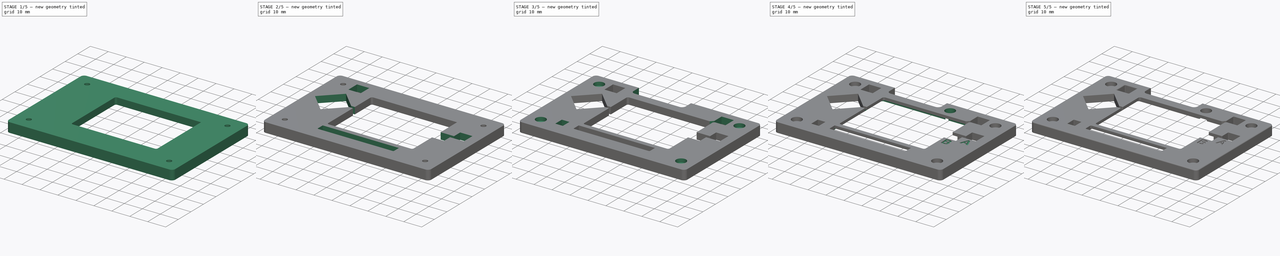
[diagram: build sequence overview — one tinted view per stage of 5, left to right]
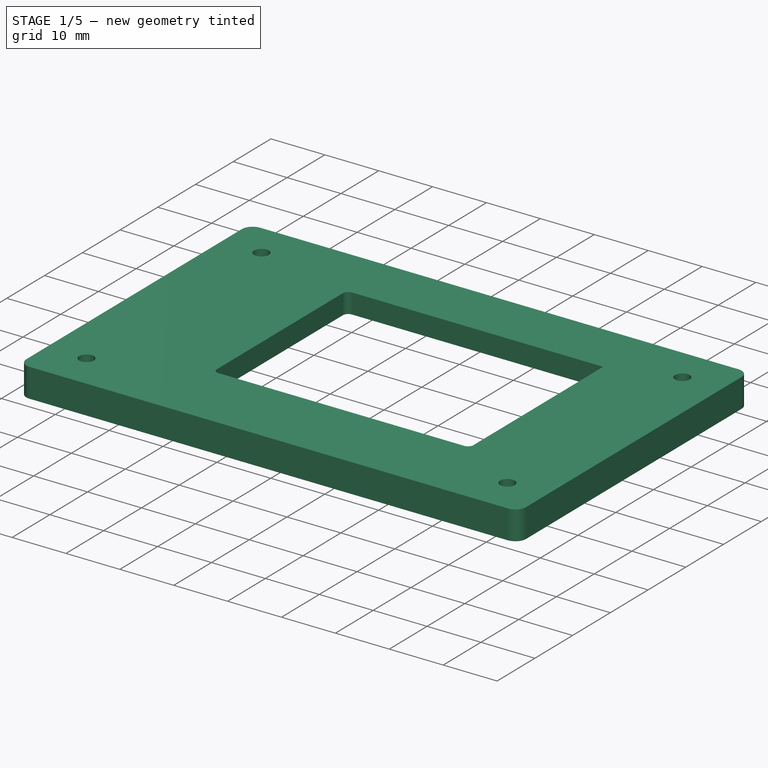
[diagram: stage 1 of 5 — iso view after this stage's code; geometry added in this stage tinted green]
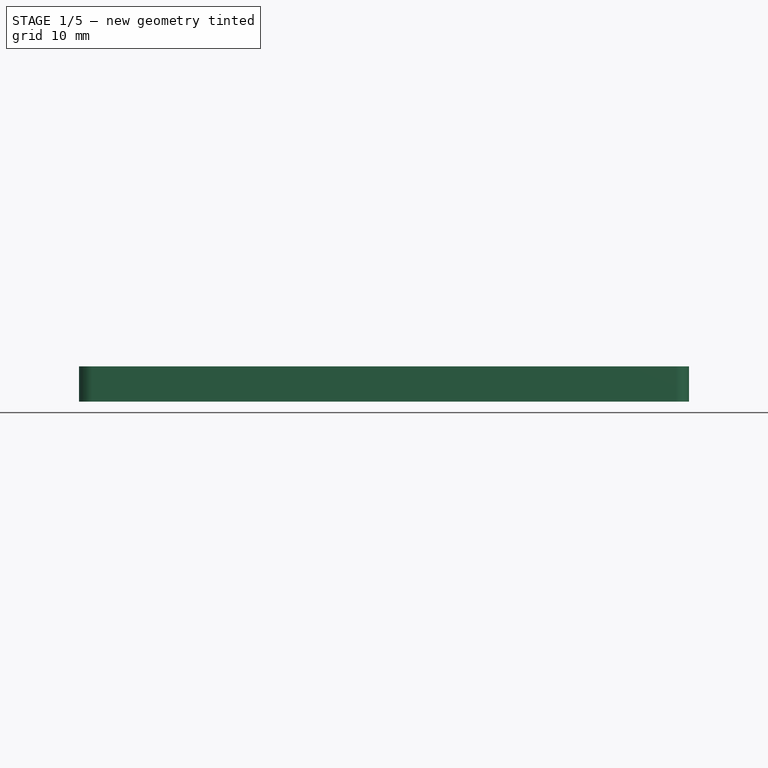
[diagram: stage 1 of 5 — front view after this stage's code; geometry added in this stage tinted green]
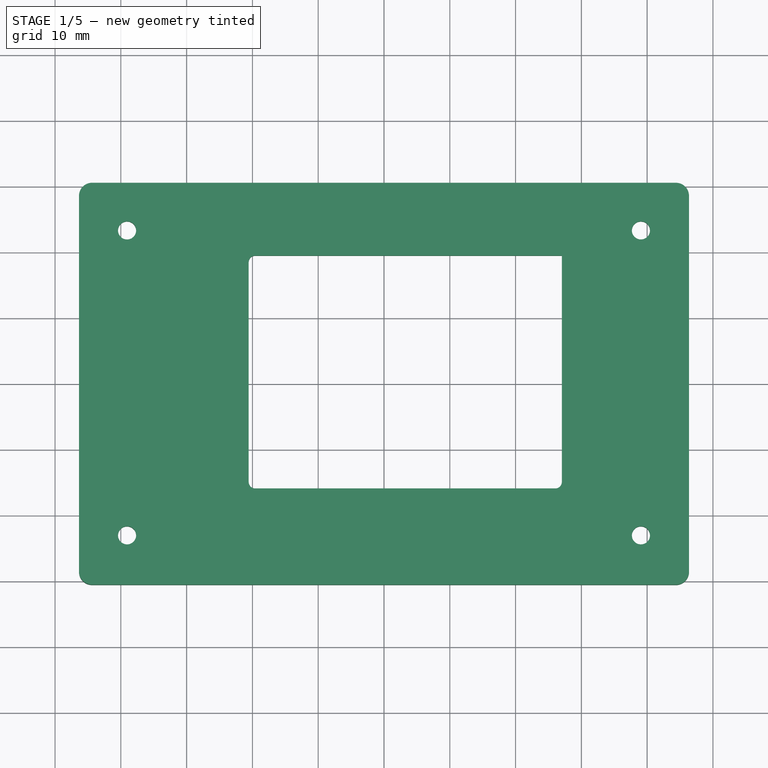
[diagram: stage 1 of 5 — top view after this stage's code; geometry added in this stage tinted green]
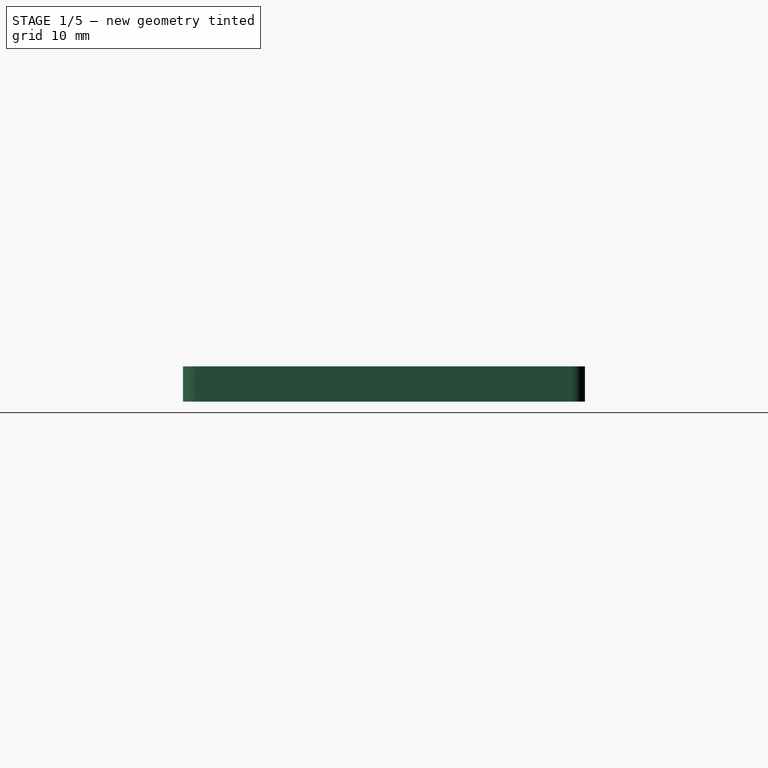
[diagram: stage 1 of 5 — right view after this stage's code; geometry added in this stage tinted green]
FCSTD DOCUMENT  (FreeCAD 0.21R33675 (Git))
Label: pybadge_cover
License: All rights reserved
LicenseURL: http://en.wikipedia.org/wiki/All_rights_reserved
objects: Sketcher::SketchObject×14, PartDesign::Pocket×14, PartDesign::Fillet×4, PartDesign::Pad×2, Part::Part2DObjectPython×2, Spreadsheet::Sheet×1, PartDesign::Plane×1, PartDesign::Body×1
note: 58 computed .brp shape members not serialized (recipe doc carries the construction recipe); baked Part::Feature solids carry a one-line shape summary decoded from their .brp

FEATURE [Spreadsheet::Sheet] Spreadsheet
  cells = A2='Cover; A3='PyBadgePCBWidth; B3(PyBadgePCBWidth)==85.725 mm; A4='PyBadgePCBLength; B4(PyBadgePCBLength)==54.102 mm; A5='PyBadgePCBThickness; B5(PyBadgePCBThickness)==1.65 mm; A6='PyBadgeCoverTopThickness; B6(PyBadgeCoverTopThickness)==3.7 mm; A7='PyBadgeCoverSideThickness; B7(PyBadgeCoverSideThickness)==2.5 mm; A8='PyBadgeCoverWidth; B8(PyBadgeCoverWidth)==PyBadgePCBWidth + 2 * (PyBadgeCoverInsideMargin + PyBadgeCoverSideThickness); A9='PyBadgeCoverLength; B9(PyBadgeCoverLength)==PyBadgePCBLength + 2 * (PyBadgeCoverInsideMargin + PyBadgeCoverSideThickness); A10='PyBadgeCoverInsideWidth; B10(PyBadgeCoverInsideWidth)==PyBadgePCBWidth + 2 * PyBadgeCoverInsideMargin; A11='PyBadgeCoverInsideLength; B11(PyBadgeCoverInsideLength)==PyBadgePCBLength + 2 * PyBadgeCoverInsideMargin; A12='PyBadgeCoverWallHeight; B12(PyBadgeCoverWallHeight)==PyBadgePCBThickness; A13='PyBadgeCoverCornerFilletRadius; B13(PyBadgeCoverCornerFilletRadius)==2 mm; A14='PyBadgeCoverBasePocketDepth; B14(PyBadgeCoverBasePocketDepth)==1.5 mm; A16='Mount Hole; A17='PyBadgeMountHoleWidth; B17(PyBadgeMountHoleWidth)==78.105 mm; A18='PyBadgeMountHoleLength; B18(PyBadgeMountHoleLength)==46.355 mm; A19='PyBadgeMountHoleYOffsetFromCenter; B19(PyBadgeMountHoleYOffsetFromCenter)==0.127 mm; A20='PyBadgeMountHoleDiameter; B20(PyBadgeMountHoleDiameter)==2.75 mm; A21='PyBadgeMountScrewHeadDiameter; B21(PyBadgeMountScrewHeadDiameter)==5 mm; A22='PyBadgeMountScrewHeadHeight; B22(PyBadgeMountScrewHeadHeight)==2.1 mm; A23='PyBadgeMountHeadPocketDiameter; B23(PyBadgeMountHeadPocketDiameter)==PyBadgeMountScrewHeadDiameter + 2 * PyBadgeMountScrewHeadSideMargin; A24='PyBadgeMountHeadPocketDepth; B24(PyBadgeMountHeadPocketDepth)==PyBadgeMountScrewHeadHeight + PyBadgeMountScrewHeadDepthMargin; A26='Display; A27='PyBadgeDisplayPocketWidth; B27(PyBadgeDisplayPocketWidth)==47.6 mm; A28='PyBadgeDisplayPocketLength; B28(PyBadgeDisplayPocketLength)==35.4 mm; A29='PyBadgeDisplayPocketFilletRadius; B29(PyBadgeDisplayPocketFilletRadius)==1 mm; A30='PyBadgeDisplayPockerFromPCBLeftEdge; B30(PyBadgeDisplayPockerFromPCBLeftEdge)==22.293 mm; A31='PyBadgeDisplayPockerFromPCBBottomEdge; B31(PyBadgeDisplayPockerFromPCBBottomEdge)==11.129 mm; A32='PyBadgeDisplayGlueClearanceMargin; B32(PyBadgeDisplayGlueClearanceMargin)==2.7 mm; A33='PyBadgeDisplayGlueClearancePocketDepth; B33(PyBadgeDisplayGlueClearancePocketDepth)==2.2 mm; A35='UDLR Button Group; A36='UDLRButtonPocketWidth; B36(UDLRButtonPocketWidth)==20.331 mm; A37='UDLRButtonPocketLength; B37(UDLRButtonPocketLength)==20.331 mm; A38='UDLRButtonPocketFromPCBLeftEdge; B38(UDLRButtonPocketFromPCBLeftEdge)==0.63 mm; A39='UDLRButtonPocketFromPCBBottomEdge; B39(UDLRButtonPocketFromPCBBottomEdge)==32.512 mm; A40='UDLRButtonPocketToDisplayPocketSlotWidth; B40(UDLRButtonPocketToDisplayPocketSlotWidth)==1.5 mm; A42='LED; A43='LEDPocketWidth; B43(LEDPocketWidth)==42.425 mm; A44='LEDPocketLength; B44(LEDPocketLength)==4.3 mm; A45='LEDPocketFilletRadius; B45(LEDPocketFilletRadius)==0.5 mm; A46='LEDPocketFromPCBLeftEdge; B46(LEDPocketFromPCBLeftEdge)==21.65 mm; A47='LEDPocketFromPCBBottomEdge; B47(LEDPocketFromPCBBottomEdge)==4.327 mm; A49='AB Button Group; A50='BButtonPocketTopWidth; B50(BButtonPocketTopWidth)==7.472 mm; A51='BButtonPocketBottonWidth; B51(BButtonPocketBottonWidth)==6.621 mm; A52='BButtonPocketLength; B52(BButtonPocketLength)==6.832 mm; A53='AButtonPocketBottomWidth; B53(AButtonPocketBottomWidth)==7.683 mm; A54='AButtonPocketLength; B54(AButtonPocketLength)==6.833 mm; A55='ABButtonPocketOverlap; B55(ABButtonPocketOverlap)==1.942 mm; A56='ABButtonPocketFromPCBBottomEdge; B56(ABButtonPocketFromPCBBottomEdge)==26.619 mm; A58='Select Button; A59='SelectButtonPocketWidth; B59(SelectButtonPocketWidth)==6.832 mm; A60='SelectButtonPocketLength; B60(SelectButtonPocketLength)==6.832 mm; A61='SelectButtonPocketFromPCBLeftEdge; B61(SelectButtonPocketFromPCBLeftEdge)==9.093 mm; A62='SelectButtonPocketFromPCBBottomEdge; B62(SelectButtonPocketFromPCBBottomEdge)==47.003 mm; A64='Start Button; A65='StartButtonPocketWidth; B65(StartButtonPocketWidth)==6.832 mm; A66='StartButtonPocketLength; B66(StartButtonPocketLength)==6.832 mm; A67='StartButtonPocketFromPCBLeftEdge; B67(StartButtonPocketFromPCBLeftEdge)==69.545 mm; A68='StartButtonPocketFromPCBBottomEdge; B68(StartButtonPocketFromPCBBottomEdge)==47.003 mm; A69='StartButtonPocketToDisplayPocketSlotWidth; B69(StartButtonPocketToDisplayPocketSlotWidth)==1.5 mm; A71='USB Switch Pocket; A72='USBSwitchPocketLeftWidth; B72(USBSwitchPocketLeftWidth)==22 mm; A73='USBSwitchPocketRightWidth; B73(USBSwitchPocketRightWidth)==7 mm; A74='USBSwitchPocketFilletRadius; B74(USBSwitchPocketFilletRadius)==2 mm; A76='Mic ; A77='MicWidth; B77(MicWidth)==3.02 mm; A78='MicLength; B78(MicLength)==4.02 mm; A79='MicPocketWidth; B79(MicPocketWidth)==MicWidth + 2 * MicPocketMargin; A80='MicPocketLength; B80(MicPocketLength)==MicLength + 2 * MicPocketMargin; A81='MicPocketFromPCBLeftEdge; B81(MicPocketFromPCBLeftEdge)==12.4 mm - MicPocketMargin; A82='MicPocketFromPCBBottomEdge; B82(MicPocketFromPCBBottomEdge)==4.65 mm - MicPocketMargin; A84='Light Sensor; A85='LightSensorDiameter; B85(LightSensorDiameter)==2.4 mm; A86='LightSensorPocketDiameter; B86(LightSensorPocketDiameter)==LightSensorDiameter + 2 * LightSensorPocketMargin; A87='LightSensorCenterXPos; B87(LightSensorCenterXPos)==55.697 mm; A88='LightSensorCenterYPos; B88(LightSensorCenterYPos)==51.795 mm; A90='Common Fillets; A91='LargeFilletRadius; B91(LargeFilletRadius)==1 mm; A92='MediumFilletRadius; B92(MediumFilletRadius)==0.5 mm; A93='SmallFilletRadius; B93(SmallFilletRadius)==0.2 mm; A95='Margins; A96='PyBadgeCoverInsideMargin; B96(PyBadgeCoverInsideMargin)==1 mm; A97='PyBadgeCoverOutsideMargin; B97(PyBadgeCoverOutsideMargin)==0.25 mm; A98='PyBadgeABButtonLeftPocketMargin; B98(PyBadgeABButtonLeftPocketMargin)==1 mm; A99='USBSwitchPocketTopMargin; B99(USBSwitchPocketTopMargin)==1 mm; A100='USBSwitchPocketBottomMargin; B100(USBSwitchPocketBottomMargin)==2.75 mm; A101='PyBadgeMountScrewHeadSideMargin; B101(PyBadgeMountScrewHeadSideMargin)==0.25 mm; A102='PyBadgeMountScrewHeadDepthMargin; B102(PyBadgeMountScrewHeadDepthMargin)==0 mm; A103='MicPocketMargin; B103(MicPocketMargin)==0.6 mm; A104='LightSensorPocketMargin; B104(LightSensorPocketMargin)==1.5 mm; A106='Labels; A107='ALabelString; B107(ALabelString)='A; A108='BLabelString; B108(BLabelString)='B; A109='ALabelSize; B109(ALabelSize)==2.5 mm; A110='BLabelSize; B110(BLabelSize)==2.5 mm; A111='ALabelXPos; B111(ALabelXPos)==36 mm; A112='ALabelYPos; B112(ALabelYPos)==-1.2 mm; A113='BLabelXPos; B113(BLabelXPos)==28.5 mm; A114='BLabelYPos; B114(BLabelYPos)==-6 mm
FEATURE [Sketcher::SketchObject] Sketch  label="BaseSketch"
  FullyConstrained = true
  MapMode = 5
  Support = -> [XY_Plane]
  expr: Constraints[20] = Spreadsheet.PyBadgeCoverCornerFilletRadius
  expr: Constraints[21] = Spreadsheet.PyBadgeCoverWidth
  expr: Constraints[22] = Spreadsheet.PyBadgeCoverLength
  sketch-geometry (10):
    g0: ArcOfCircle CenterX=-44.3625 CenterY=28.551 CenterZ=0 NormalX=0 NormalY=0 NormalZ=1 AngleXU=0 Radius=2 StartAngle=1.5708 EndAngle=3.14159
    g1: LineSegment StartX=-44.3625 StartY=30.551 StartZ=0 EndX=44.3625 EndY=30.551 EndZ=0
    g2: ArcOfCircle CenterX=44.3625 CenterY=28.551 CenterZ=0 NormalX=0 NormalY=0 NormalZ=1 AngleXU=0 Radius=2 StartAngle=0 EndAngle=1.5708
    g3: LineSegment StartX=46.3625 StartY=28.551 StartZ=0 EndX=46.3625 EndY=-28.551 EndZ=0
    g4: ArcOfCircle CenterX=44.3625 CenterY=-28.551 CenterZ=0 NormalX=0 NormalY=0 NormalZ=1 AngleXU=0 Radius=2 StartAngle=4.71239 EndAngle=6.28319
    g5: LineSegment StartX=44.3625 StartY=-30.551 StartZ=0 EndX=-44.3625 EndY=-30.551 EndZ=0
    g6: ArcOfCircle CenterX=-44.3625 CenterY=-28.551 CenterZ=0 NormalX=0 NormalY=0 NormalZ=1 AngleXU=0 Radius=2 StartAngle=3.14159 EndAngle=4.71239
    g7: LineSegment StartX=-46.3625 StartY=-28.551 StartZ=0 EndX=-46.3625 EndY=28.551 EndZ=0
    g8: GeomPoint X=-46.3625 Y=30.551 Z=0
    g9: GeomPoint X=46.3625 Y=-30.551 Z=0
  constraints (23):
    c: Tangent(g0,g1) = 1.5708
    c: Tangent(g1,g2) = 1.5708
    c: Tangent(g2,g3) = 1.5708
    c: Tangent(g3,g4) = 1.5708
    c: Tangent(g4,g5) = 1.5708
    c: Tangent(g5,g6) = 1.5708
    c: Tangent(g6,g7) = 1.5708
    c: Tangent(g7,g0) = 1.5708
    c: Horizontal(g1)
    c: Horizontal(g5)
    c: Vertical(g3)
    c: Vertical(g7)
    c: Equal(g0,g2)
    c: Equal(g2,g4)
    c: Equal(g4,g6)
    c: PointOnObject(g8,g1)
    c: PointOnObject(g8,g7)
    c: PointOnObject(g9,g3)
    c: PointOnObject(g9,g5)
    c: Symmetric(g0,g4,g-1)
    c: Radius(g0) = 2
    c: DistanceX(g0,g2) = 92.725
    c: DistanceY(g4,g1) = 61.102
FEATURE [PartDesign::Pad] Pad  label="BasePad"
  Direction = (0,0,1)
  Length = 3.7
  Length2 = 10
  Profile = -> Sketch
  ReferenceAxis = -> Sketch [N_Axis]
  Type = 0
  expr: Length = Spreadsheet.PyBadgeCoverTopThickness
FEATURE [Sketcher::SketchObject] Sketch001  label="WallSketch"
  FullyConstrained = true
  MapMode = 5
  Support = -> [XY_Plane]
  expr: Constraints[20] = Spreadsheet.PyBadgeCoverCornerFilletRadius
  expr: Constraints[21] = Spreadsheet.PyBadgeCoverWidth
  expr: Constraints[22] = Spreadsheet.PyBadgeCoverLength
  expr: Constraints[43] = Spreadsheet.PyBadgeCoverCornerFilletRadius
  expr: Constraints[44] = Spreadsheet.PyBadgeCoverInsideWidth
  expr: Constraints[45] = Spreadsheet.PyBadgeCoverInsideLength
  sketch-geometry (20):
    g0: ArcOfCircle CenterX=-44.3625 CenterY=28.551 CenterZ=0 NormalX=0 NormalY=0 NormalZ=1 AngleXU=0 Radius=2 StartAngle=1.5708 EndAngle=3.14159
    g1: LineSegment StartX=-44.3625 StartY=30.551 StartZ=0 EndX=44.3625 EndY=30.551 EndZ=0
    g2: ArcOfCircle CenterX=44.3625 CenterY=28.551 CenterZ=0 NormalX=0 NormalY=0 NormalZ=1 AngleXU=0 Radius=2 StartAngle=9e-16 EndAngle=1.5708
    g3: LineSegment StartX=46.3625 StartY=28.551 StartZ=0 EndX=46.3625 EndY=-28.551 EndZ=0
    g4: ArcOfCircle CenterX=44.3625 CenterY=-28.551 CenterZ=0 NormalX=0 NormalY=0 NormalZ=1 AngleXU=0 Radius=2 StartAngle=4.71239 EndAngle=6.28319
    g5: LineSegment StartX=44.3625 StartY=-30.551 StartZ=0 EndX=-44.3625 EndY=-30.551 EndZ=0
    g6: ArcOfCircle CenterX=-44.3625 CenterY=-28.551 CenterZ=0 NormalX=0 NormalY=0 NormalZ=1 AngleXU=0 Radius=2 StartAngle=3.14159 EndAngle=4.71239
    g7: LineSegment StartX=-46.3625 StartY=-28.551 StartZ=0 EndX=-46.3625 EndY=28.551 EndZ=0
    g8: GeomPoint X=-46.3625 Y=30.551 Z=0
    g9: GeomPoint X=46.3625 Y=-30.551 Z=0
    g10: ArcOfCircle CenterX=-41.8625 CenterY=26.051 CenterZ=0 NormalX=0 NormalY=0 NormalZ=1 AngleXU=0 Radius=2 StartAngle=1.5708 EndAngle=3.14159
    g11: LineSegment StartX=-41.8625 StartY=28.051 StartZ=0 EndX=41.8625 EndY=28.051 EndZ=0
    g12: ArcOfCircle CenterX=41.8625 CenterY=26.051 CenterZ=0 NormalX=0 NormalY=0 NormalZ=1 AngleXU=0 Radius=2 StartAngle=6.136e-13 EndAngle=1.5708
    g13: LineSegment StartX=43.8625 StartY=26.051 StartZ=0 EndX=43.8625 EndY=-26.051 EndZ=0
    g14: ArcOfCircle CenterX=41.8625 CenterY=-26.051 CenterZ=0 NormalX=0 NormalY=0 NormalZ=1 AngleXU=0 Radius=2 StartAngle=4.71239 EndAngle=6.28319
    g15: LineSegment StartX=41.8625 StartY=-28.051 StartZ=0 EndX=-41.8625 EndY=-28.051 EndZ=0
    g16: ArcOfCircle CenterX=-41.8625 CenterY=-26.051 CenterZ=0 NormalX=0 NormalY=0 NormalZ=1 AngleXU=0 Radius=2 StartAngle=3.14159 EndAngle=4.71239
    g17: LineSegment StartX=-43.8625 StartY=-26.051 StartZ=0 EndX=-43.8625 EndY=26.051 EndZ=0
    g18: GeomPoint X=-43.8625 Y=28.051 Z=0
    g19: GeomPoint X=43.8625 Y=-28.051 Z=0
  constraints (46):
    c: Tangent(g0,g1) = 1.5708
    c: Tangent(g1,g2) = 1.5708
    c: Tangent(g2,g3) = 1.5708
    c: Tangent(g3,g4) = 1.5708
    c: Tangent(g4,g5) = 1.5708
    c: Tangent(g5,g6) = 1.5708
    c: Tangent(g6,g7) = 1.5708
    c: Tangent(g7,g0) = 1.5708
    c: Horizontal(g1)
    c: Horizontal(g5)
    c: Vertical(g3)
    c: Vertical(g7)
    c: Equal(g0,g2)
    c: Equal(g2,g4)
    c: Equal(g4,g6)
    c: PointOnObject(g8,g1)
    c: PointOnObject(g8,g7)
    c: PointOnObject(g9,g3)
    c: PointOnObject(g9,g5)
    c: Symmetric(g0,g4,g-1)
    c: Radius(g0) = 2
    c: DistanceX(g0,g2) = 92.725
    c: DistanceY(g4,g1) = 61.102
    c: Tangent(g10,g11) = 1.5708
    c: Tangent(g11,g12) = 1.5708
    c: Tangent(g12,g13) = 1.5708
    c: Tangent(g13,g14) = 1.5708
    c: Tangent(g14,g15) = 1.5708
    c: Tangent(g15,g16) = 1.5708
    c: Tangent(g16,g17) = 1.5708
    c: Tangent(g17,g10) = 1.5708
    c: Horizontal(g11)
    c: Horizontal(g15)
    c: Vertical(g13)
    c: Vertical(g17)
    c: Equal(g10,g12)
    c: Equal(g12,g14)
    c: Equal(g14,g16)
    c: PointOnObject(g18,g11)
    c: PointOnObject(g18,g17)
    c: PointOnObject(g19,g13)
    c: PointOnObject(g19,g15)
    c: Symmetric(g10,g14,g-1)
    c: Radius(g10) = 2
    c: DistanceX(g10,g12) = 87.725
    c: DistanceY(g14,g11) = 56.102
FEATURE [PartDesign::Pad] Pad001  label="WallPad"
  BaseFeature = -> Pad
  Direction = (0,0,1)
  Length = 1.65
  Length2 = 10
  Profile = -> Sketch001
  ReferenceAxis = -> Sketch001 [N_Axis]
  Reversed = true
  Type = 0
  expr: Length = Spreadsheet.PyBadgeCoverWallHeight
FEATURE [PartDesign::Plane] DatumPlane  label="TopDatumPlane"
  AttachmentOffset = pos=(0,0,3.7) rot=(0,0,1;0rad)
  Length = 107.779
  MapMode = 5
  Placement = pos=(0,0,3.7) rot=(0,0,1;0rad)
  ResizeMode = 0
  Support = -> [XY_Plane]
  Width = 76.1561
  expr: .AttachmentOffset.Base.z = Spreadsheet.PyBadgeCoverTopThickness
FEATURE [Sketcher::SketchObject] Sketch002  label="MountHoleSketch"
  FullyConstrained = true
  MapMode = 5
  Placement = pos=(0,0,3.7) rot=(0,0,1;0rad)
  Support = -> [DatumPlane]
  expr: Constraints[16] = Spreadsheet.PyBadgeMountHoleWidth
  expr: Constraints[17] = Spreadsheet.PyBadgeMountHoleLength
  expr: Constraints[18] = Spreadsheet.PyBadgeMountHoleYOffsetFromCenter
  expr: Constraints[26] = Spreadsheet.PyBadgeMountHoleDiameter
  sketch-geometry (11):
    g0: LineSegment StartX=-39.0525 StartY=23.3045 StartZ=0 EndX=39.0525 EndY=23.3045 EndZ=0
    g1: LineSegment StartX=39.0525 StartY=23.3045 StartZ=0 EndX=39.0525 EndY=-23.0505 EndZ=0
    g2: LineSegment StartX=39.0525 StartY=-23.0505 StartZ=0 EndX=-39.0525 EndY=-23.0505 EndZ=0
    g3: LineSegment StartX=-39.0525 StartY=-23.0505 StartZ=0 EndX=-39.0525 EndY=23.3045 EndZ=0
    g4: LineSegment StartX=0 StartY=0.127 StartZ=0 EndX=0 EndY=0 EndZ=0
    g5: LineSegment StartX=-39.0525 StartY=23.3045 StartZ=0 EndX=0 EndY=0.127 EndZ=0
    g6: LineSegment StartX=0 StartY=0.127 StartZ=0 EndX=39.0525 EndY=-23.0505 EndZ=0
    g7: Circle CenterX=-39.0525 CenterY=23.3045 CenterZ=0 NormalX=0 NormalY=0 NormalZ=1 AngleXU=0 Radius=1.375
    g8: Circle CenterX=39.0525 CenterY=23.3045 CenterZ=0 NormalX=0 NormalY=0 NormalZ=1 AngleXU=0 Radius=1.375
    g9: Circle CenterX=39.0525 CenterY=-23.0505 CenterZ=0 NormalX=0 NormalY=0 NormalZ=1 AngleXU=0 Radius=1.375
    g10: Circle CenterX=-39.0525 CenterY=-23.0505 CenterZ=0 NormalX=0 NormalY=0 NormalZ=1 AngleXU=0 Radius=1.375
  constraints (27):
    c: Coincident(g0,g1)
    c: Coincident(g1,g2)
    c: Coincident(g2,g3)
    c: Coincident(g3,g0)
    c: Horizontal(g0)
    c: Horizontal(g2)
    c: Vertical(g1)
    c: Vertical(g3)
    c: Vertical(g4)
    c: Coincident(g4,g-1)
    c: Coincident(g5,g6)
    c: Equal(g5,g6)
    c: Parallel(g5,g6)
    c: Coincident(g5,g4)
    c: Coincident(g5,g0)
    c: Coincident(g6,g1)
    c: DistanceX(g0,g0) = 78.105
    c: DistanceY(g1,g1) = 46.355
    c: DistanceY(g4,g4) = 0.127
    c: Equal(g7,g8)
    c: Equal(g8,g9)
    c: Equal(g9,g10)
    c: Coincident(g7,g0)
    c: Coincident(g8,g0)
    c: Coincident(g9,g1)
    c: Coincident(g10,g2)
    c: Diameter(g7) = 2.75
FEATURE [PartDesign::Pocket] Pocket  label="MountHolePocket"
  BaseFeature = -> Pad001
  Direction = (0,0,-1)
  Length = 5
  Length2 = 5
  Profile = -> Sketch002
  ReferenceAxis = -> Sketch002 [N_Axis]
  Type = 1
FEATURE [Sketcher::SketchObject] Sketch003  label="DisplaySketch"
  FullyConstrained = true
  MapMode = 5
  Placement = pos=(0,0,3.7) rot=(0,0,1;0rad)
  Support = -> [DatumPlane]
  expr: Constraints[10] = Spreadsheet.PyBadgePCBLength
  expr: Constraints[12] = Spreadsheet.PyBadgeDisplayPockerFromPCBLeftEdge
  expr: Constraints[30] = Spreadsheet.PyBadgeDisplayPocketFilletRadius
  expr: Constraints[37] = Spreadsheet.PyBadgeDisplayPocketLength
  expr: Constraints[38] = Spreadsheet.PyBadgeDisplayPockerFromPCBBottomEdge
  expr: Constraints[40] = Spreadsheet.PyBadgeDisplayPocketWidth
  expr: Constraints[9] = Spreadsheet.PyBadgePCBWidth
  sketch-geometry (17):
    g0: LineSegment StartX=-42.8625 StartY=27.051 StartZ=0 EndX=42.8625 EndY=27.051 EndZ=0
    g1: LineSegment StartX=42.8625 StartY=27.051 StartZ=0 EndX=42.8625 EndY=-27.051 EndZ=0
    g2: LineSegment StartX=42.8625 StartY=-27.051 StartZ=0 EndX=-42.8625 EndY=-27.051 EndZ=0
    g3: LineSegment StartX=-42.8625 StartY=-27.051 StartZ=0 EndX=-42.8625 EndY=27.051 EndZ=0
    g4: GeomPoint X=-20.5695 Y=-27.051 Z=0
    g5: LineSegment StartX=-20.5695 StartY=-15.922 StartZ=0 EndX=-20.5695 EndY=-27.051 EndZ=0
    g6: ArcOfCircle CenterX=-19.5695 CenterY=18.478 CenterZ=0 NormalX=0 NormalY=0 NormalZ=1 AngleXU=0 Radius=1 StartAngle=1.5708 EndAngle=3.14159
    g7: LineSegment StartX=-19.5695 StartY=19.478 StartZ=0 EndX=27.0305 EndY=19.478 EndZ=0
    g8: LineSegment StartX=27.0305 StartY=19.478 StartZ=0 EndX=27.0305 EndY=-14.922 EndZ=0
    g9: ArcOfCircle CenterX=26.0305 CenterY=-14.922 CenterZ=0 NormalX=0 NormalY=0 NormalZ=1 AngleXU=0 Radius=1 StartAngle=4.71239 EndAngle=6.28319
    g10: LineSegment StartX=26.0305 StartY=-15.922 StartZ=0 EndX=-19.5695 EndY=-15.922 EndZ=0
    g11: ArcOfCircle CenterX=-19.5695 CenterY=-14.922 CenterZ=0 NormalX=0 NormalY=0 NormalZ=1 AngleXU=0 Radius=1 StartAngle=3.14159 EndAngle=4.71239
    g12: LineSegment StartX=-20.5695 StartY=-14.922 StartZ=0 EndX=-20.5695 EndY=18.478 EndZ=0
    g13: GeomPoint X=-20.5695 Y=19.478 Z=0
    g14: GeomPoint X=27.0305 Y=-15.922 Z=0
    g15: LineSegment StartX=-20.5695 StartY=-14.922 StartZ=0 EndX=-20.5695 EndY=-15.922 EndZ=0
    g16: LineSegment StartX=-20.5695 StartY=-15.922 StartZ=0 EndX=-19.5695 EndY=-15.922 EndZ=0
  constraints (42):
    c: Coincident(g0,g1)
    c: Coincident(g1,g2)
    c: Coincident(g2,g3)
    c: Coincident(g3,g0)
    c: Horizontal(g0)
    c: Horizontal(g2)
    c: Vertical(g1)
    c: Vertical(g3)
    c: Symmetric(g0,g1,g-1)
    c: DistanceX(g0,g0) = 85.725
    c: DistanceY(g1,g1) = 54.102
    c: PointOnObject(g4,g2)
    c: DistanceX(g2,g4) = 22.293
    c: Vertical(g5)
    c: Coincident(g5,g4)
    c: Tangent(g6,g7) = 1.5708
    c: Tangent(g8,g9) = 1.5708
    c: Tangent(g9,g10) = 1.5708
    c: Tangent(g10,g11) = 1.5708
    c: Tangent(g11,g12) = 1.5708
    c: Tangent(g12,g6) = 1.5708
    c: Horizontal(g7)
    c: Horizontal(g10)
    c: Vertical(g8)
    c: Vertical(g12)
    c: Equal(g9,g11)
    c: PointOnObject(g13,g7)
    c: PointOnObject(g13,g12)
    c: PointOnObject(g14,g8)
    c: PointOnObject(g14,g10)
    c: Radius(g6) = 1
    c: Vertical(g15)
    c: Horizontal(g16)
    c: Coincident(g15,g16)
    c: Coincident(g16,g10)
    c: Coincident(g15,g11)
    c: Coincident(g5,g15)
    c: DistanceY(g9,g7) = 35.4
    c: DistanceY(g5,g5) = 11.129
    c: Coincident(g7,g8)
    c: DistanceX(g13,g7) = 47.6
    c: Equal(g6,g11)
FEATURE [PartDesign::Pocket] Pocket001  label="DisplayPocket"
  BaseFeature = -> Pocket
  Direction = (0,0,-1)
  Length = 5
  Length2 = 5
  Profile = -> Sketch003
  ReferenceAxis = -> Sketch003 [N_Axis]
  Type = 1
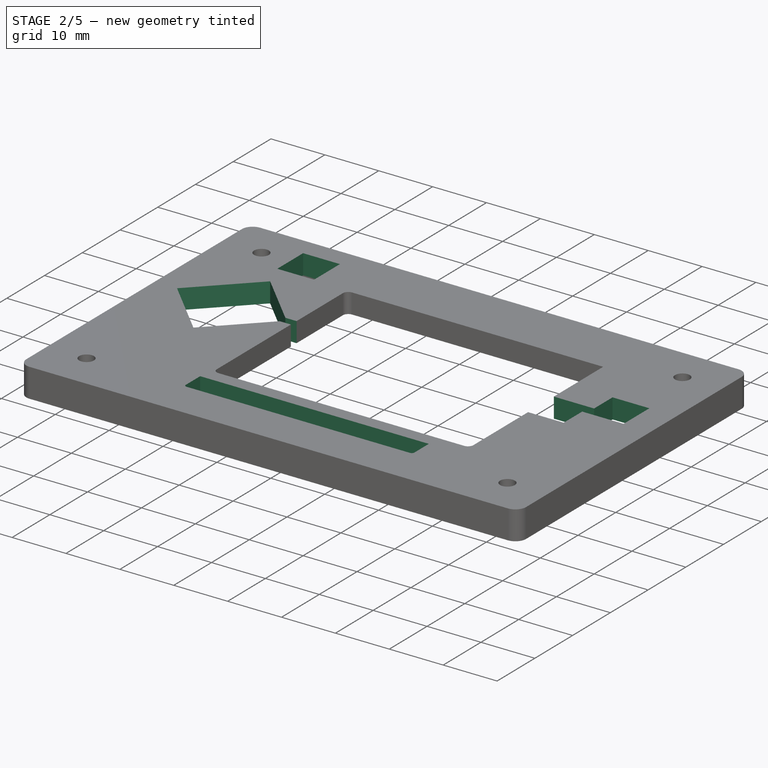
[diagram: stage 2 of 5 — iso view after this stage's code; geometry added in this stage tinted green]
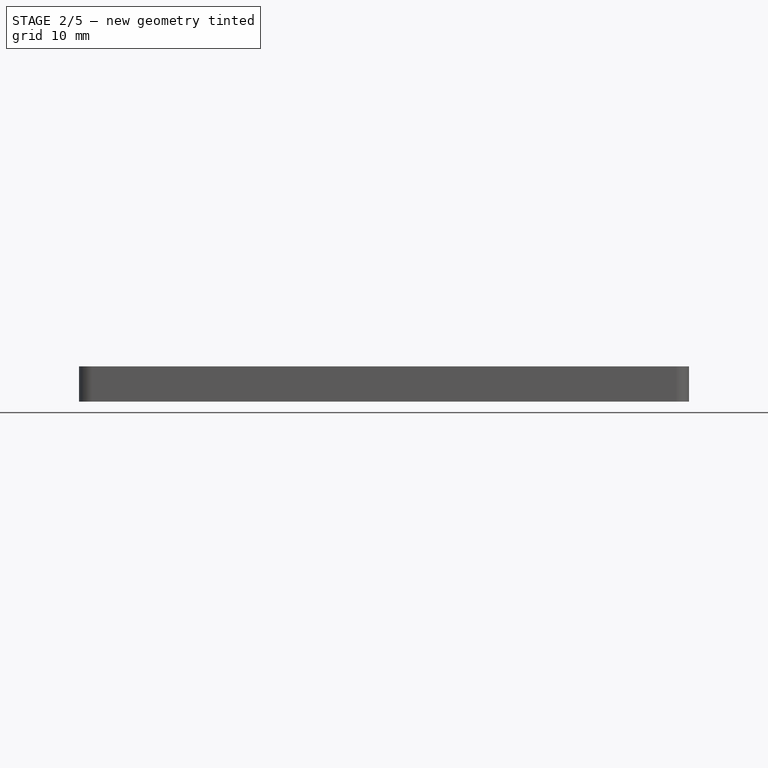
[diagram: stage 2 of 5 — front view after this stage's code; geometry added in this stage tinted green]
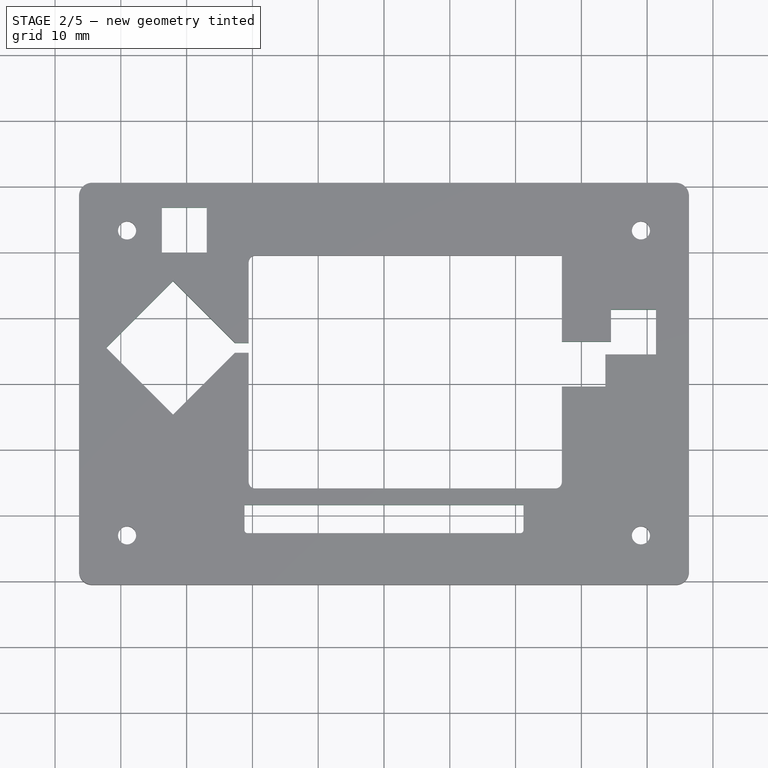
[diagram: stage 2 of 5 — top view after this stage's code; geometry added in this stage tinted green]
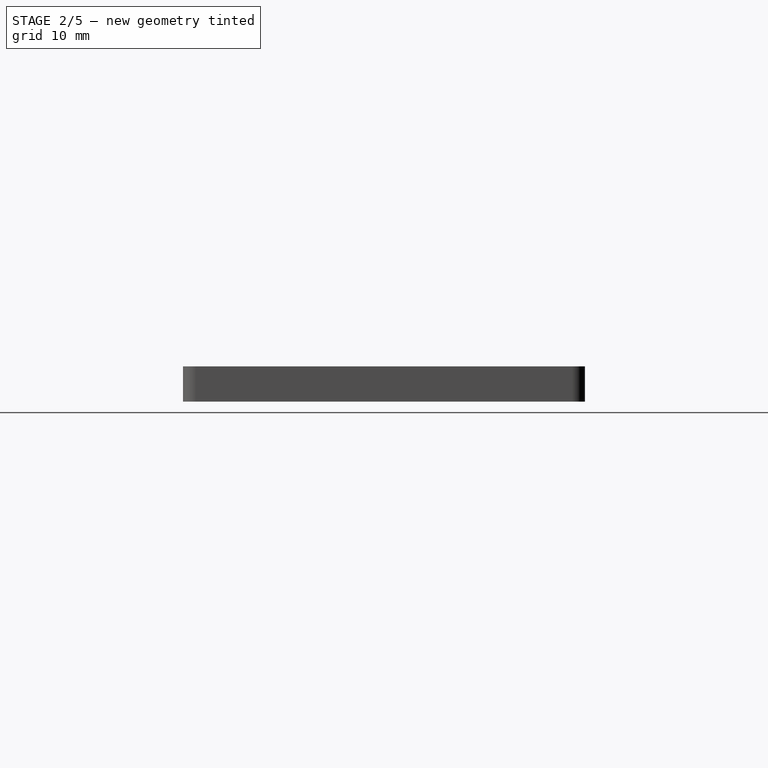
[diagram: stage 2 of 5 — right view after this stage's code; geometry added in this stage tinted green]
FEATURE [Sketcher::SketchObject] Sketch004  label="UDLRButtonPocketSketch"
  FullyConstrained = true
  MapMode = 5
  Placement = pos=(0,0,3.7) rot=(0,0,1;0rad)
  Support = -> [DatumPlane]
  expr: Constraints[10] = Spreadsheet.PyBadgePCBLength
  expr: Constraints[12] = Spreadsheet.UDLRButtonPocketFromPCBLeftEdge
  expr: Constraints[15] = Spreadsheet.UDLRButtonPocketFromPCBBottomEdge
  expr: Constraints[29] = Spreadsheet.UDLRButtonPocketWidth
  expr: Constraints[30] = Spreadsheet.UDLRButtonPocketLength
  expr: Constraints[39] = Spreadsheet.PyBadgeDisplayPocketWidth
  expr: Constraints[40] = Spreadsheet.PyBadgeDisplayPocketLength
  expr: Constraints[41] = Spreadsheet.PyBadgeDisplayPockerFromPCBBottomEdge
  expr: Constraints[42] = Spreadsheet.PyBadgeDisplayPockerFromPCBLeftEdge
  expr: Constraints[56] = Spreadsheet.UDLRButtonPocketToDisplayPocketSlotWidth
  expr: Constraints[9] = Spreadsheet.PyBadgePCBWidth
  sketch-geometry (21):
    g0: LineSegment StartX=-42.8625 StartY=27.051 StartZ=0 EndX=42.8625 EndY=27.051 EndZ=0
    g1: LineSegment StartX=42.8625 StartY=27.051 StartZ=0 EndX=42.8625 EndY=-27.051 EndZ=0
    g2: LineSegment StartX=42.8625 StartY=-27.051 StartZ=0 EndX=-42.8625 EndY=-27.051 EndZ=0
    g3: LineSegment StartX=-42.8625 StartY=-27.051 StartZ=0 EndX=-42.8625 EndY=27.051 EndZ=0
    g4: GeomPoint X=-42.2325 Y=-27.051 Z=0
    g5: LineSegment StartX=-42.2325 StartY=5.461 StartZ=0 EndX=-42.2325 EndY=-27.051 EndZ=0
    g6: LineSegment StartX=-42.2325 StartY=5.461 StartZ=0 EndX=-32.067 EndY=15.6265 EndZ=0
    g7: LineSegment StartX=-32.067 StartY=15.6265 StartZ=0 EndX=-21.9015 EndY=5.461 EndZ=0
    g8: LineSegment StartX=-21.9015 StartY=5.461 StartZ=0 EndX=-32.067 EndY=-4.7045 EndZ=0
    g9: LineSegment StartX=-32.067 StartY=-4.7045 StartZ=0 EndX=-42.2325 EndY=5.461 EndZ=0
    g10: LineSegment StartX=-42.2325 StartY=5.461 StartZ=0 EndX=-21.9015 EndY=5.461 EndZ=0
    g11: LineSegment StartX=-32.067 StartY=15.6265 StartZ=0 EndX=-32.067 EndY=-4.7045 EndZ=0
    g12: LineSegment StartX=-20.5695 StartY=19.478 StartZ=0 EndX=27.0305 EndY=19.478 EndZ=0
    g13: LineSegment StartX=27.0305 StartY=19.478 StartZ=0 EndX=27.0305 EndY=-15.922 EndZ=0
    g14: LineSegment StartX=27.0305 StartY=-15.922 StartZ=0 EndX=-20.5695 EndY=-15.922 EndZ=0
    g15: LineSegment StartX=-20.5695 StartY=-15.922 StartZ=0 EndX=-20.5695 EndY=19.478 EndZ=0
    g16: LineSegment StartX=-32.067 StartY=15.6265 StartZ=0 EndX=-22.6515 EndY=6.211 EndZ=0
    g17: LineSegment StartX=-32.067 StartY=-4.7045 StartZ=0 EndX=-22.6515 EndY=4.711 EndZ=0
    g18: LineSegment StartX=-22.6515 StartY=6.211 StartZ=0 EndX=-20.5695 EndY=6.211 EndZ=0
    g19: LineSegment StartX=-22.6515 StartY=4.711 StartZ=0 EndX=-20.5695 EndY=4.711 EndZ=0
    g20: LineSegment StartX=-20.5695 StartY=6.211 StartZ=0 EndX=-20.5695 EndY=4.711 EndZ=0
  constraints (57):
    c: Coincident(g0,g1)
    c: Coincident(g1,g2)
    c: Coincident(g2,g3)
    c: Coincident(g3,g0)
    c: Horizontal(g0)
    c: Horizontal(g2)
    c: Vertical(g1)
    c: Vertical(g3)
    c: Symmetric(g0,g1,g-1)
    c: DistanceX(g0,g0) = 85.725
    c: DistanceY(g1,g1) = 54.102
    c: PointOnObject(g4,g2)
    c: DistanceX(g2,g4) = 0.63
    c: Vertical(g5)
    c: Coincident(g5,g4)
    c: DistanceY(g5,g5) = 32.512
    c: Coincident(g6,g7)
    c: Coincident(g7,g8)
    c: Coincident(g8,g9)
    c: Coincident(g9,g6)
    c: Equal(g6,g8)
    c: Equal(g9,g7)
    c: Coincident(g6,g5)
    c: Horizontal(g10)
    c: Coincident(g6,g10)
    c: Coincident(g10,g7)
    c: Vertical(g11)
    c: Coincident(g11,g6)
    c: Coincident(g11,g8)
    c: DistanceY(g11,g11) = 20.331
    c: DistanceX(g10,g10) = 20.331
    c: Coincident(g12,g13)
    c: Coincident(g13,g14)
    c: Coincident(g14,g15)
    c: Coincident(g15,g12)
    c: Horizontal(g12)
    c: Horizontal(g14)
    c: Vertical(g13)
    c: Vertical(g15)
    c: DistanceX(g12,g12) = 47.6
    c: DistanceY(g13,g13) = 35.4
    c: DistanceY(g2,g14) = 11.129
    c: DistanceX(g2,g14) = 22.293
    c: Coincident(g16,g6)
    c: PointOnObject(g16,g7)
    c: Coincident(g17,g9)
    c: PointOnObject(g17,g8)
    c: Equal(g17,g16)
    c: Coincident(g18,g16)
    c: Coincident(g19,g17)
    c: Equal(g19,g18)
    c: Horizontal(g18)
    c: Horizontal(g19)
    c: Coincident(g20,g18)
    c: Coincident(g19,g20)
    c: PointOnObject(g18,g15)
    c: DistanceY(g20,g20) = 1.5
FEATURE [PartDesign::Pocket] Pocket002  label="UDLRButtonPocket"
  BaseFeature = -> Pocket001
  Direction = (0,0,-1)
  Length = 5
  Length2 = 5
  Profile = -> Sketch004
  ReferenceAxis = -> Sketch004 [N_Axis]
  Type = 1
FEATURE [Sketcher::SketchObject] Sketch005  label="LeDPocketSketch"
  FullyConstrained = true
  MapMode = 5
  Placement = pos=(0,0,3.7) rot=(0,0,1;0rad)
  Support = -> [DatumPlane]
  expr: Constraints[10] = Spreadsheet.PyBadgePCBLength
  expr: Constraints[12] = Spreadsheet.LEDPocketFromPCBLeftEdge
  expr: Constraints[15] = Spreadsheet.LEDPocketFromPCBBottomEdge
  expr: Constraints[33] = Spreadsheet.LEDPocketLength
  expr: Constraints[37] = Spreadsheet.LEDPocketFilletRadius
  expr: Constraints[38] = Spreadsheet.LEDPocketWidth
  expr: Constraints[9] = Spreadsheet.PyBadgePCBWidth
  sketch-geometry (16):
    g0: LineSegment StartX=-42.8625 StartY=27.051 StartZ=0 EndX=42.8625 EndY=27.051 EndZ=0
    g1: LineSegment StartX=42.8625 StartY=27.051 StartZ=0 EndX=42.8625 EndY=-27.051 EndZ=0
    g2: LineSegment StartX=42.8625 StartY=-27.051 StartZ=0 EndX=-42.8625 EndY=-27.051 EndZ=0
    g3: LineSegment StartX=-42.8625 StartY=-27.051 StartZ=0 EndX=-42.8625 EndY=27.051 EndZ=0
    g4: GeomPoint X=-21.2125 Y=-27.051 Z=0
    g5: LineSegment StartX=-21.2125 StartY=-22.724 StartZ=0 EndX=-21.2125 EndY=-27.051 EndZ=0
    g6: LineSegment StartX=-21.2125 StartY=-18.424 StartZ=0 EndX=21.2125 EndY=-18.424 EndZ=0
    g7: LineSegment StartX=21.2125 StartY=-18.424 StartZ=0 EndX=21.2125 EndY=-22.224 EndZ=0
    g8: ArcOfCircle CenterX=20.7125 CenterY=-22.224 CenterZ=0 NormalX=0 NormalY=0 NormalZ=1 AngleXU=0 Radius=0.5 StartAngle=4.71239 EndAngle=6.28319
    g9: LineSegment StartX=20.7125 StartY=-22.724 StartZ=0 EndX=-20.7125 EndY=-22.724 EndZ=0
    g10: ArcOfCircle CenterX=-20.7125 CenterY=-22.224 CenterZ=0 NormalX=0 NormalY=0 NormalZ=1 AngleXU=0 Radius=0.5 StartAngle=3.14159 EndAngle=4.71239
    g11: LineSegment StartX=-21.2125 StartY=-22.224 StartZ=0 EndX=-21.2125 EndY=-18.424 EndZ=0
    g12: GeomPoint X=-21.2125 Y=-18.424 Z=0
    g13: GeomPoint X=21.2125 Y=-22.724 Z=0
    g14: LineSegment StartX=-21.2125 StartY=-22.224 StartZ=0 EndX=-21.2125 EndY=-22.724 EndZ=0
    g15: LineSegment StartX=-21.2125 StartY=-22.724 StartZ=0 EndX=-20.7125 EndY=-22.724 EndZ=0
  constraints (39):
    c: Coincident(g0,g1)
    c: Coincident(g1,g2)
    c: Coincident(g2,g3)
    c: Coincident(g3,g0)
    c: Horizontal(g0)
    c: Horizontal(g2)
    c: Vertical(g1)
    c: Vertical(g3)
    c: Symmetric(g0,g1,g-1)
    c: DistanceX(g0,g0) = 85.725
    c: DistanceY(g1,g1) = 54.102
    c: PointOnObject(g4,g2)
    c: DistanceX(g2,g4) = 21.65
    c: Vertical(g5)
    c: Coincident(g5,g4)
    c: DistanceY(g5,g5) = 4.327
    c: Tangent(g7,g8) = 1.5708
    c: Tangent(g8,g9) = 1.5708
    c: Tangent(g9,g10) = 1.5708
    c: Tangent(g10,g11) = 1.5708
    c: Horizontal(g6)
    c: Horizontal(g9)
    c: Vertical(g7)
    c: Vertical(g11)
    c: Equal(g8,g10)
    c: PointOnObject(g13,g7)
    c: PointOnObject(g13,g9)
    c: Vertical(g14)
    c: Coincident(g14,g10)
    c: Horizontal(g15)
    c: Coincident(g15,g9)
    c: Coincident(g14,g15)
    c: Coincident(g14,g5)
    c: DistanceY(g5,g12) = 4.3
    c: Coincident(g11,g12)
    c: Coincident(g11,g6)
    c: Coincident(g6,g7)
    c: Radius(g8) = 0.5
    c: DistanceX(g6,g6) = 42.425
FEATURE [PartDesign::Pocket] Pocket003  label="LEDPocket"
  BaseFeature = -> Pocket002
  Direction = (0,0,-1)
  Length = 5
  Length2 = 5
  Profile = -> Sketch005
  ReferenceAxis = -> Sketch005 [N_Axis]
  Type = 1
FEATURE [Sketcher::SketchObject] Sketch006  label="ABButtonPocketSketch"
  FullyConstrained = true
  MapMode = 5
  Placement = pos=(0,0,3.7) rot=(0,0,1;0rad)
  Support = -> [DatumPlane]
  expr: Constraints[10] = Spreadsheet.PyBadgePCBLength
  expr: Constraints[19] = Spreadsheet.PyBadgeDisplayPocketWidth
  expr: Constraints[20] = Spreadsheet.PyBadgeDisplayPocketLength
  expr: Constraints[22] = Spreadsheet.PyBadgeDisplayPockerFromPCBLeftEdge
  expr: Constraints[25] = Spreadsheet.PyBadgeDisplayPockerFromPCBBottomEdge
  expr: Constraints[30] = Spreadsheet.ABButtonPocketFromPCBBottomEdge
  expr: Constraints[37] = Spreadsheet.BButtonPocketLength
  expr: Constraints[39] = Spreadsheet.PyBadgeABButtonLeftPocketMargin
  expr: Constraints[55] = Spreadsheet.BButtonPocketBottonWidth
  expr: Constraints[56] = Spreadsheet.BButtonPocketTopWidth
  expr: Constraints[57] = Spreadsheet.ABButtonPocketOverlap
  expr: Constraints[58] = Spreadsheet.AButtonPocketBottomWidth
  expr: Constraints[59] = Spreadsheet.AButtonPocketLength
  expr: Constraints[9] = Spreadsheet.PyBadgePCBWidth
  sketch-geometry (21):
    g0: LineSegment StartX=-42.8625 StartY=27.051 StartZ=0 EndX=42.8625 EndY=27.051 EndZ=0
    g1: LineSegment StartX=42.8625 StartY=27.051 StartZ=0 EndX=42.8625 EndY=-27.051 EndZ=0
    g2: LineSegment StartX=42.8625 StartY=-27.051 StartZ=0 EndX=-42.8625 EndY=-27.051 EndZ=0
    g3: LineSegment StartX=-42.8625 StartY=-27.051 StartZ=0 EndX=-42.8625 EndY=27.051 EndZ=0
    g4: LineSegment StartX=-20.5695 StartY=19.478 StartZ=0 EndX=27.0305 EndY=19.478 EndZ=0
    g5: LineSegment StartX=27.0305 StartY=19.478 StartZ=0 EndX=27.0305 EndY=-15.922 EndZ=0
    g6: LineSegment StartX=27.0305 StartY=-15.922 StartZ=0 EndX=-20.5695 EndY=-15.922 EndZ=0
    g7: LineSegment StartX=-20.5695 StartY=-15.922 StartZ=0 EndX=-20.5695 EndY=19.478 EndZ=0
    g8: GeomPoint X=-20.5695 Y=-27.051 Z=0
    g9: LineSegment StartX=-20.5695 StartY=-15.922 StartZ=0 EndX=-20.5695 EndY=-27.051 EndZ=0
    g10: LineSegment StartX=27.0305 StartY=-0.432 StartZ=0 EndX=27.0305 EndY=-27.051 EndZ=0
    g11: LineSegment StartX=27.0305 StartY=6.4 StartZ=0 EndX=26.0305 EndY=6.4 EndZ=0
    g12: LineSegment StartX=26.0305 StartY=6.4 StartZ=0 EndX=26.0305 EndY=-0.432 EndZ=0
    g13: LineSegment StartX=26.0305 StartY=-0.432 StartZ=0 EndX=27.0305 EndY=-0.432 EndZ=0
    g14: LineSegment StartX=27.0305 StartY=-0.432 StartZ=0 EndX=33.6515 EndY=-0.432 EndZ=0
    g15: LineSegment StartX=27.0305 StartY=6.4 StartZ=0 EndX=34.5025 EndY=6.4 EndZ=0
    g16: LineSegment StartX=34.5025 StartY=6.4 StartZ=0 EndX=34.5025 EndY=11.291 EndZ=0
    g17: LineSegment StartX=34.5025 StartY=11.291 StartZ=0 EndX=41.3345 EndY=11.291 EndZ=0
    g18: LineSegment StartX=41.3345 StartY=11.291 StartZ=0 EndX=41.3345 EndY=4.458 EndZ=0
    g19: LineSegment StartX=41.3345 StartY=4.458 StartZ=0 EndX=33.6515 EndY=4.458 EndZ=0
    g20: LineSegment StartX=33.6515 StartY=4.458 StartZ=0 EndX=33.6515 EndY=-0.432 EndZ=0
  constraints (60):
    c: Coincident(g0,g1)
    c: Coincident(g1,g2)
    c: Coincident(g2,g3)
    c: Coincident(g3,g0)
    c: Horizontal(g0)
    c: Horizontal(g2)
    c: Vertical(g1)
    c: Vertical(g3)
    c: Symmetric(g0,g1,g-1)
    c: DistanceX(g0,g0) = 85.725
    c: DistanceY(g1,g1) = 54.102
    c: Coincident(g4,g5)
    c: Coincident(g5,g6)
    c: Coincident(g6,g7)
    c: Coincident(g7,g4)
    c: Horizontal(g4)
    c: Horizontal(g6)
    c: Vertical(g5)
    c: Vertical(g7)
    c: DistanceX(g4,g4) = 47.6
    c: DistanceY(g7,g7) = 35.4
    c: PointOnObject(g8,g2)
    c: DistanceX(g2,g8) = 22.293
    c: Vertical(g9)
    c: Coincident(g9,g8)
    c: DistanceY(g9,g9) = 11.129
    c: Coincident(g6,g9)
    c: Vertical(g10)
    c: PointOnObject(g10,g2)
    c: PointOnObject(g10,g5)
    c: DistanceY(g10,g10) = 26.619
    c: Horizontal(g11)
    c: Coincident(g11,g12)
    c: Vertical(g12)
    c: Coincident(g12,g13)
    c: Horizontal(g13)
    c: Equal(g11,g13)
    c: DistanceY(g12,g12) = 6.832
    c: Coincident(g13,g10)
    c: DistanceX(g13,g13) = 1
    c: Horizontal(g14)
    c: Coincident(g13,g14)
    c: Horizontal(g15)
    c: Coincident(g11,g15)
    c: Coincident(g15,g16)
    c: Vertical(g16)
    c: Coincident(g16,g17)
    c: Horizontal(g17)
    c: Coincident(g17,g18)
    c: Vertical(g18)
    c: Coincident(g18,g19)
    c: Horizontal(g19)
    c: Coincident(g19,g20)
    c: Vertical(g20)
    c: Coincident(g20,g14)
    c: DistanceX(g14,g14) = 6.621
    c: DistanceX(g15,g15) = 7.472
    c: DistanceY(g19,g15) = 1.942
    c: DistanceX(g19,g19) = 7.683
    c: DistanceY(g18,g18) = 6.833
FEATURE [PartDesign::Pocket] Pocket004  label="ABButtonPocket"
  BaseFeature = -> Pocket003
  Direction = (0,0,-1)
  Length = 5
  Length2 = 5
  Profile = -> Sketch006
  ReferenceAxis = -> Sketch006 [N_Axis]
  Type = 1
  expr: Length = 5 mm
FEATURE [Sketcher::SketchObject] Sketch007  label="SelectButtonPocketSketch"
  FullyConstrained = true
  MapMode = 5
  Placement = pos=(0,0,3.7) rot=(0,0,1;0rad)
  Support = -> [DatumPlane]
  expr: Constraints[10] = Spreadsheet.PyBadgePCBLength
  expr: Constraints[12] = Spreadsheet.SelectButtonPocketFromPCBLeftEdge
  expr: Constraints[15] = Spreadsheet.SelectButtonPocketFromPCBBottomEdge
  expr: Constraints[25] = Spreadsheet.SelectButtonPocketWidth
  expr: Constraints[26] = Spreadsheet.SelectButtonPocketLength
  expr: Constraints[9] = Spreadsheet.PyBadgePCBWidth
  sketch-geometry (10):
    g0: LineSegment StartX=-42.8625 StartY=27.051 StartZ=0 EndX=42.8625 EndY=27.051 EndZ=0
    g1: LineSegment StartX=42.8625 StartY=27.051 StartZ=0 EndX=42.8625 EndY=-27.051 EndZ=0
    g2: LineSegment StartX=42.8625 StartY=-27.051 StartZ=0 EndX=-42.8625 EndY=-27.051 EndZ=0
    g3: LineSegment StartX=-42.8625 StartY=-27.051 StartZ=0 EndX=-42.8625 EndY=27.051 EndZ=0
    g4: GeomPoint X=-33.7695 Y=-27.051 Z=0
    g5: LineSegment StartX=-33.7695 StartY=19.952 StartZ=0 EndX=-33.7695 EndY=-27.051 EndZ=0
    g6: LineSegment StartX=-33.7695 StartY=26.784 StartZ=0 EndX=-26.9375 EndY=26.784 EndZ=0
    g7: LineSegment StartX=-26.9375 StartY=26.784 StartZ=0 EndX=-26.9375 EndY=19.952 EndZ=0
    g8: LineSegment StartX=-26.9375 StartY=19.952 StartZ=0 EndX=-33.7695 EndY=19.952 EndZ=0
    g9: LineSegment StartX=-33.7695 StartY=19.952 StartZ=0 EndX=-33.7695 EndY=26.784 EndZ=0
  constraints (27):
    c: Coincident(g0,g1)
    c: Coincident(g1,g2)
    c: Coincident(g2,g3)
    c: Coincident(g3,g0)
    c: Horizontal(g0)
    c: Horizontal(g2)
    c: Vertical(g1)
    c: Vertical(g3)
    c: Symmetric(g0,g1,g-1)
    c: DistanceX(g0,g0) = 85.725
    c: DistanceY(g1,g1) = 54.102
    c: PointOnObject(g4,g2)
    c: DistanceX(g2,g4) = 9.093
    c: Vertical(g5)
    c: Coincident(g5,g4)
    c: DistanceY(g5,g5) = 47.003
    c: Coincident(g6,g7)
    c: Coincident(g7,g8)
    c: Coincident(g8,g9)
    c: Coincident(g9,g6)
    c: Horizontal(g6)
    c: Horizontal(g8)
    c: Vertical(g7)
    c: Vertical(g9)
    c: Coincident(g8,g5)
    c: DistanceX(g6,g6) = 6.832
    c: DistanceY(g7,g7) = 6.832
FEATURE [PartDesign::Pocket] Pocket005  label="SelectButtonPocket"
  BaseFeature = -> Pocket004
  Direction = (0,0,-1)
  Length = 5
  Length2 = 5
  Profile = -> Sketch007
  ReferenceAxis = -> Sketch007 [N_Axis]
  Type = 1
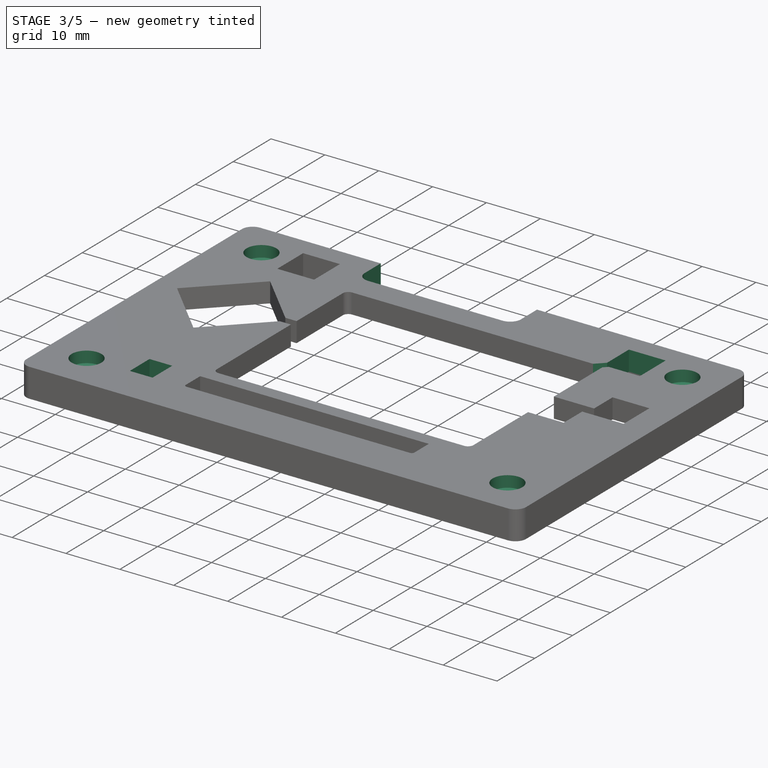
[diagram: stage 3 of 5 — iso view after this stage's code; geometry added in this stage tinted green]
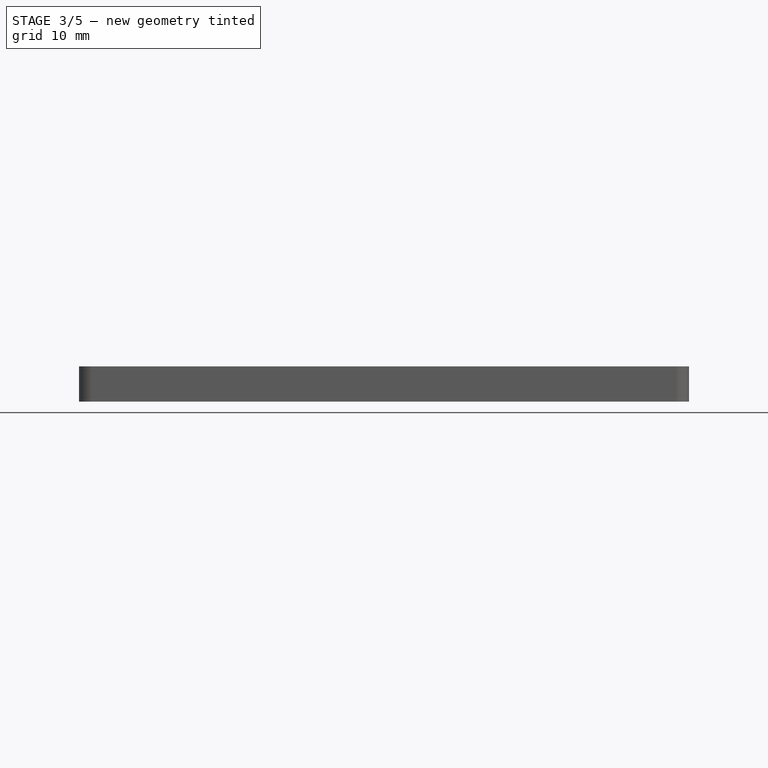
[diagram: stage 3 of 5 — front view after this stage's code; geometry added in this stage tinted green]
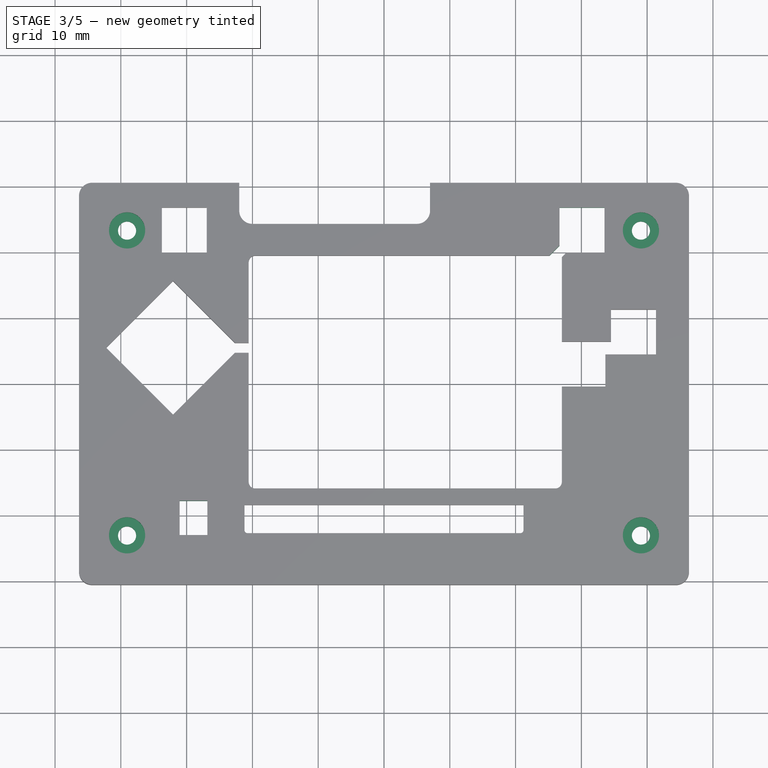
[diagram: stage 3 of 5 — top view after this stage's code; geometry added in this stage tinted green]
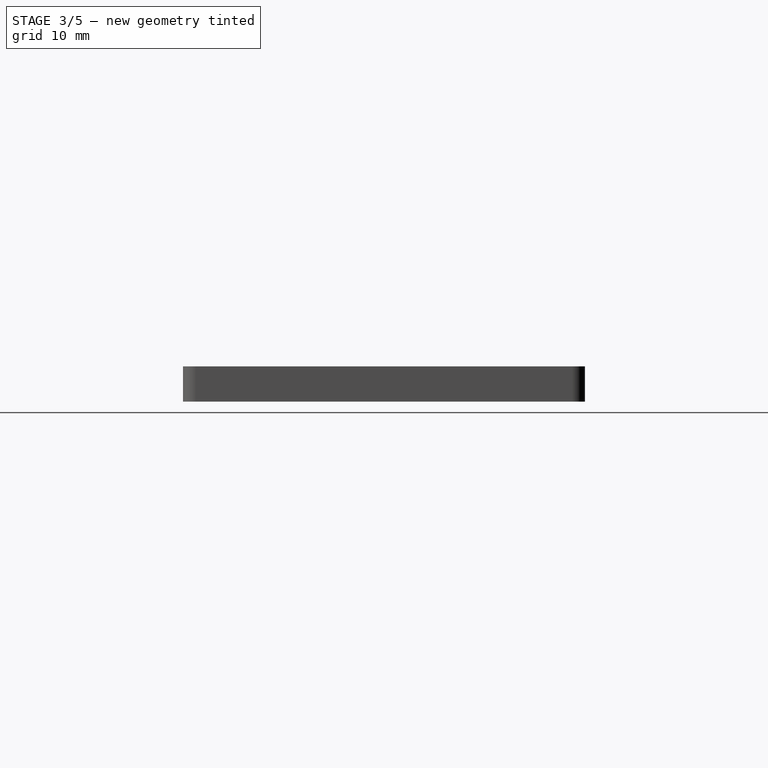
[diagram: stage 3 of 5 — right view after this stage's code; geometry added in this stage tinted green]
FEATURE [Sketcher::SketchObject] Sketch008  label="StartButtonPocketSketch"
  FullyConstrained = true
  MapMode = 5
  Placement = pos=(0,0,3.7) rot=(0,0,1;0rad)
  Support = -> [DatumPlane]
  expr: Constraints[10] = Spreadsheet.PyBadgePCBLength
  expr: Constraints[12] = Spreadsheet.StartButtonPocketFromPCBLeftEdge
  expr: Constraints[15] = Spreadsheet.StartButtonPocketFromPCBBottomEdge
  expr: Constraints[25] = Spreadsheet.StartButtonPocketWidth
  expr: Constraints[26] = Spreadsheet.StartButtonPocketLength
  expr: Constraints[35] = Spreadsheet.PyBadgeDisplayPockerFromPCBBottomEdge
  expr: Constraints[36] = Spreadsheet.PyBadgeDisplayPockerFromPCBLeftEdge
  expr: Constraints[37] = Spreadsheet.PyBadgeDisplayPocketLength
  expr: Constraints[38] = Spreadsheet.PyBadgeDisplayPocketWidth
  expr: Constraints[54] = Spreadsheet.StartButtonPocketToDisplayPocketSlotWidth
  expr: Constraints[9] = Spreadsheet.PyBadgePCBWidth
  sketch-geometry (20):
    g0: LineSegment StartX=-42.8625 StartY=27.051 StartZ=0 EndX=42.8625 EndY=27.051 EndZ=0
    g1: LineSegment StartX=42.8625 StartY=27.051 StartZ=0 EndX=42.8625 EndY=-27.051 EndZ=0
    g2: LineSegment StartX=42.8625 StartY=-27.051 StartZ=0 EndX=-42.8625 EndY=-27.051 EndZ=0
    g3: LineSegment StartX=-42.8625 StartY=-27.051 StartZ=0 EndX=-42.8625 EndY=27.051 EndZ=0
    g4: GeomPoint X=26.6825 Y=-27.051 Z=0
    g5: LineSegment StartX=26.6825 StartY=19.952 StartZ=0 EndX=26.6825 EndY=-27.051 EndZ=0
    g6: LineSegment StartX=26.6825 StartY=26.784 StartZ=0 EndX=33.5145 EndY=26.784 EndZ=0
    g7: LineSegment StartX=33.5145 StartY=26.784 StartZ=0 EndX=33.5145 EndY=19.952 EndZ=0
    g8: LineSegment StartX=33.5145 StartY=19.952 StartZ=0 EndX=26.6825 EndY=19.952 EndZ=0
    g9: LineSegment StartX=26.6825 StartY=19.952 StartZ=0 EndX=26.6825 EndY=26.784 EndZ=0
    g10: LineSegment StartX=-20.5695 StartY=19.478 StartZ=0 EndX=27.0305 EndY=19.478 EndZ=0
    g11: LineSegment StartX=27.0305 StartY=19.478 StartZ=0 EndX=27.0305 EndY=-15.922 EndZ=0
    g12: LineSegment StartX=27.0305 StartY=-15.922 StartZ=0 EndX=-20.5695 EndY=-15.922 EndZ=0
    g13: LineSegment StartX=-20.5695 StartY=-15.922 StartZ=0 EndX=-20.5695 EndY=19.478 EndZ=0
    g14: LineSegment StartX=26.6825 StartY=26.784 StartZ=0 EndX=26.6825 EndY=21.0127 EndZ=0
    g15: LineSegment StartX=33.5145 StartY=19.952 StartZ=0 EndX=27.7432 EndY=19.952 EndZ=0
    g16: LineSegment StartX=26.6825 StartY=21.0127 StartZ=0 EndX=27.7432 EndY=19.952 EndZ=0
    g17: LineSegment StartX=26.6825 StartY=21.0127 StartZ=0 EndX=25.1478 EndY=19.478 EndZ=0
    g18: LineSegment StartX=27.7432 StartY=19.952 StartZ=0 EndX=26.2085 EndY=18.4173 EndZ=0
    g19: LineSegment StartX=25.1478 StartY=19.478 StartZ=0 EndX=26.2085 EndY=18.4173 EndZ=0
  constraints (55):
    c: Coincident(g0,g1)
    c: Coincident(g1,g2)
    c: Coincident(g2,g3)
    c: Coincident(g3,g0)
    c: Horizontal(g0)
    c: Horizontal(g2)
    c: Vertical(g1)
    c: Vertical(g3)
    c: Symmetric(g0,g1,g-1)
    c: DistanceX(g0,g0) = 85.725
    c: DistanceY(g1,g1) = 54.102
    c: PointOnObject(g4,g2)
    c: DistanceX(g2,g4) = 69.545
    c: Vertical(g5)
    c: Coincident(g5,g4)
    c: DistanceY(g5,g5) = 47.003
    c: Coincident(g6,g7)
    c: Coincident(g7,g8)
    c: Coincident(g8,g9)
    c: Coincident(g9,g6)
    c: Horizontal(g6)
    c: Horizontal(g8)
    c: Vertical(g7)
    c: Vertical(g9)
    c: Coincident(g8,g5)
    c: DistanceX(g6,g6) = 6.832
    c: DistanceY(g7,g7) = 6.832
    c: Coincident(g10,g11)
    c: Coincident(g11,g12)
    c: Coincident(g12,g13)
    c: Coincident(g13,g10)
    c: Horizontal(g10)
    c: Horizontal(g12)
    c: Vertical(g11)
    c: Vertical(g13)
    c: DistanceY(g2,g12) = 11.129
    c: DistanceX(g2,g12) = 22.293
    c: DistanceY(g13,g13) = 35.4
    c: DistanceX(g10,g10) = 47.6
    c: Coincident(g14,g6)
    c: Vertical(g14)
    c: Coincident(g15,g7)
    c: Horizontal(g15)
    c: Equal(g14,g15)
    c: Coincident(g16,g14)
    c: Coincident(g16,g15)
    c: Coincident(g17,g14)
    c: Perpendicular(g16,g17)
    c: Coincident(g18,g15)
    c: Parallel(g18,g17)
    c: Equal(g18,g17)
    c: Coincident(g19,g17)
    c: Coincident(g19,g18)
    c: PointOnObject(g17,g10)
    c: Distance(g19) = 1.5
FEATURE [PartDesign::Pocket] Pocket006  label="StartButtonPocket"
  BaseFeature = -> Pocket005
  Direction = (0,0,-1)
  Length = 5
  Length2 = 5
  Profile = -> Sketch008
  ReferenceAxis = -> Sketch008 [N_Axis]
  Type = 1
FEATURE [Sketcher::SketchObject] Sketch009  label="USBSwitchPocketSketch"
  FullyConstrained = true
  MapMode = 5
  Placement = pos=(0,0,3.7) rot=(0,0,1;0rad)
  Support = -> [DatumPlane]
  expr: Constraints[19] = Spreadsheet.PyBadgeCoverWidth
  expr: Constraints[20] = Spreadsheet.PyBadgePCBWidth
  expr: Constraints[21] = Spreadsheet.PyBadgePCBLength
  expr: Constraints[35] = Spreadsheet.USBSwitchPocketTopMargin
  expr: Constraints[42] = Spreadsheet.USBSwitchPocketBottomMargin
  expr: Constraints[43] = Spreadsheet.USBSwitchPocketLeftWidth
  expr: Constraints[44] = Spreadsheet.USBSwitchPocketRightWidth
  expr: Constraints[54] = Spreadsheet.USBSwitchPocketFilletRadius
  expr: Constraints[9] = Spreadsheet.PyBadgeCoverLength
  sketch-geometry (21):
    g0: LineSegment StartX=-46.3625 StartY=30.551 StartZ=0 EndX=46.3625 EndY=30.551 EndZ=0
    g1: LineSegment StartX=46.3625 StartY=30.551 StartZ=0 EndX=46.3625 EndY=-30.551 EndZ=0
    g2: LineSegment StartX=46.3625 StartY=-30.551 StartZ=0 EndX=-46.3625 EndY=-30.551 EndZ=0
    g3: LineSegment StartX=-46.3625 StartY=-30.551 StartZ=0 EndX=-46.3625 EndY=30.551 EndZ=0
    g4: LineSegment StartX=-42.8625 StartY=27.051 StartZ=0 EndX=42.8625 EndY=27.051 EndZ=0
    g5: LineSegment StartX=42.8625 StartY=27.051 StartZ=0 EndX=42.8625 EndY=-27.051 EndZ=0
    g6: LineSegment StartX=42.8625 StartY=-27.051 StartZ=0 EndX=-42.8625 EndY=-27.051 EndZ=0
    g7: LineSegment StartX=-42.8625 StartY=-27.051 StartZ=0 EndX=-42.8625 EndY=27.051 EndZ=0
    g8: LineSegment StartX=-20 StartY=24.301 StartZ=0 EndX=0 EndY=24.301 EndZ=0
    g9: LineSegment StartX=0 StartY=24.301 StartZ=0 EndX=0 EndY=0 EndZ=0
    g10: LineSegment StartX=0 StartY=24.301 StartZ=0 EndX=5 EndY=24.301 EndZ=0
    g11: LineSegment StartX=-22 StartY=30.551 StartZ=0 EndX=-22 EndY=31.551 EndZ=0
    g12: LineSegment StartX=-22 StartY=31.551 StartZ=0 EndX=7 EndY=31.551 EndZ=0
    g13: LineSegment StartX=7 StartY=31.551 StartZ=0 EndX=7 EndY=30.551 EndZ=0
    g14: LineSegment StartX=-22 StartY=30.551 StartZ=0 EndX=-22 EndY=26.301 EndZ=0
    g15: LineSegment StartX=7 StartY=30.551 StartZ=0 EndX=7 EndY=26.301 EndZ=0
    g16: GeomPoint X=0 Y=27.051 Z=0
    g17: ArcOfCircle CenterX=-20 CenterY=26.301 CenterZ=0 NormalX=0 NormalY=0 NormalZ=1 AngleXU=0 Radius=2 StartAngle=3.14159 EndAngle=4.71239
    g18: GeomPoint X=-22 Y=24.301 Z=0
    g19: ArcOfCircle CenterX=5 CenterY=26.301 CenterZ=0 NormalX=0 NormalY=0 NormalZ=1 AngleXU=0 Radius=2 StartAngle=4.71239 EndAngle=6.28319
    g20: GeomPoint X=7 Y=24.301 Z=0
  constraints (55):
    c: Coincident(g0,g1)
    c: Coincident(g1,g2)
    c: Coincident(g2,g3)
    c: Coincident(g3,g0)
    c: Horizontal(g0)
    c: Horizontal(g2)
    c: Vertical(g1)
    c: Vertical(g3)
    c: Symmetric(g0,g1,g-1)
    c: DistanceY(g1,g1) = 61.102
    c: Coincident(g4,g5)
    c: Coincident(g5,g6)
    c: Coincident(g6,g7)
    c: Coincident(g7,g4)
    c: Horizontal(g4)
    c: Horizontal(g6)
    c: Vertical(g5)
    c: Vertical(g7)
    c: Symmetric(g4,g5,g-1)
    c: DistanceX(g2,g2) = 92.725
    c: DistanceX(g6,g6) = 85.725
    c: DistanceY(g5,g5) = 54.102
    c: Horizontal(g8)
    c: PointOnObject(g11,g0)
    c: Vertical(g9)
    c: Coincident(g9,g-1)
    c: Coincident(g8,g9)
    c: Horizontal(g10)
    c: Coincident(g8,g10)
    c: PointOnObject(g13,g0)
    c: Vertical(g11)
    c: Coincident(g11,g12)
    c: Horizontal(g12)
    c: Coincident(g12,g13)
    c: Vertical(g13)
    c: DistanceY(g11,g11) = 1
    c: Vertical(g14)
    c: Vertical(g15)
    c: Coincident(g14,g11)
    c: Coincident(g15,g13)
    c: PointOnObject(g16,g4)
    c: PointOnObject(g16,g-2)
    c: DistanceY(g8,g16) = 2.75
    c: DistanceX(g18,g8) = 22
    c: DistanceX(g10,g20) = 7
    c: PointOnObject(g18,g14)
    c: PointOnObject(g18,g8)
    c: Tangent(g14,g17) = -1.5708
    c: Tangent(g8,g17) = -1.5708
    c: PointOnObject(g20,g10)
    c: PointOnObject(g20,g15)
    c: Tangent(g10,g19) = -1.5708
    c: Tangent(g15,g19) = 1.5708
    c: Equal(g17,g19)
    c: Radius(g17) = 2
FEATURE [PartDesign::Pocket] Pocket007  label="USBSwitchPocket"
  BaseFeature = -> Pocket006
  Direction = (0,0,-1)
  Length = 5
  Length2 = 5
  Profile = -> Sketch009
  ReferenceAxis = -> Sketch009 [N_Axis]
  Type = 1
FEATURE [Sketcher::SketchObject] Sketch010  label="MountHoleHeadPocketSketch"
  FullyConstrained = true
  MapMode = 5
  Placement = pos=(0,0,3.7) rot=(0,0,1;0rad)
  Support = -> [DatumPlane]
  expr: Constraints[16] = Spreadsheet.PyBadgeMountHoleWidth
  expr: Constraints[17] = Spreadsheet.PyBadgeMountHoleLength
  expr: Constraints[18] = Spreadsheet.PyBadgeMountHoleYOffsetFromCenter
  expr: Constraints[22] = Spreadsheet.PyBadgeMountHeadPocketDiameter
  sketch-geometry (11):
    g0: LineSegment StartX=0 StartY=0.127 StartZ=0 EndX=0 EndY=0 EndZ=0
    g1: LineSegment StartX=-39.0525 StartY=23.3045 StartZ=0 EndX=39.0525 EndY=23.3045 EndZ=0
    g2: LineSegment StartX=39.0525 StartY=23.3045 StartZ=0 EndX=39.0525 EndY=-23.0505 EndZ=0
    g3: LineSegment StartX=39.0525 StartY=-23.0505 StartZ=0 EndX=-39.0525 EndY=-23.0505 EndZ=0
    g4: LineSegment StartX=-39.0525 StartY=-23.0505 StartZ=0 EndX=-39.0525 EndY=23.3045 EndZ=0
    g5: LineSegment StartX=-39.0525 StartY=23.3045 StartZ=0 EndX=0 EndY=0.127 EndZ=0
    g6: LineSegment StartX=0 StartY=0.127 StartZ=0 EndX=39.0525 EndY=-23.0505 EndZ=0
    g7: Circle CenterX=-39.0525 CenterY=23.3045 CenterZ=0 NormalX=0 NormalY=0 NormalZ=1 AngleXU=0 Radius=2.75
    g8: Circle CenterX=39.0525 CenterY=23.3045 CenterZ=0 NormalX=0 NormalY=0 NormalZ=1 AngleXU=0 Radius=2.75
    g9: Circle CenterX=-39.0525 CenterY=-23.0505 CenterZ=0 NormalX=0 NormalY=0 NormalZ=1 AngleXU=0 Radius=2.75
    g10: Circle CenterX=39.0525 CenterY=-23.0505 CenterZ=0 NormalX=0 NormalY=0 NormalZ=1 AngleXU=0 Radius=2.75
  constraints (27):
    c: Vertical(g0)
    c: Coincident(g0,g-1)
    c: Coincident(g1,g2)
    c: Coincident(g2,g3)
    c: Coincident(g3,g4)
    c: Coincident(g4,g1)
    c: Horizontal(g1)
    c: Horizontal(g3)
    c: Vertical(g2)
    c: Vertical(g4)
    c: Coincident(g5,g6)
    c: Equal(g5,g6)
    c: Parallel(g5,g6)
    c: Coincident(g5,g0)
    c: Coincident(g5,g1)
    c: Coincident(g6,g2)
    c: DistanceX(g1,g1) = 78.105
    c: DistanceY(g2,g2) = 46.355
    c: DistanceY(g0,g0) = 0.127
    c: Equal(g7,g8)
    c: Equal(g8,g10)
    c: Equal(g10,g9)
    c: Diameter(g7) = 5.5
    c: Coincident(g7,g1)
    c: Coincident(g8,g1)
    c: Coincident(g10,g2)
    c: Coincident(g9,g3)
FEATURE [PartDesign::Pocket] Pocket008  label="PyBadgeMountHeadPocket"
  BaseFeature = -> Pocket007
  Direction = (0,0,-1)
  Length = 2.1
  Length2 = 5
  Profile = -> Sketch010
  ReferenceAxis = -> Sketch010 [N_Axis]
  Type = 0
  expr: Length = Spreadsheet.PyBadgeMountHeadPocketDepth
FEATURE [Sketcher::SketchObject] Sketch011  label="MicPocketSketch"
  FullyConstrained = true
  MapMode = 5
  Placement = pos=(0,0,3.7) rot=(0,0,1;0rad)
  Support = -> [DatumPlane]
  expr: Constraints[10] = Spreadsheet.PyBadgePCBLength
  expr: Constraints[12] = Spreadsheet.MicPocketFromPCBLeftEdge
  expr: Constraints[15] = Spreadsheet.MicPocketFromPCBBottomEdge
  expr: Constraints[25] = Spreadsheet.MicPocketWidth
  expr: Constraints[26] = Spreadsheet.MicPocketLength
  expr: Constraints[9] = Spreadsheet.PyBadgePCBWidth
  sketch-geometry (10):
    g0: LineSegment StartX=-42.8625 StartY=27.051 StartZ=0 EndX=42.8625 EndY=27.051 EndZ=0
    g1: LineSegment StartX=42.8625 StartY=27.051 StartZ=0 EndX=42.8625 EndY=-27.051 EndZ=0
    g2: LineSegment StartX=42.8625 StartY=-27.051 StartZ=0 EndX=-42.8625 EndY=-27.051 EndZ=0
    g3: LineSegment StartX=-42.8625 StartY=-27.051 StartZ=0 EndX=-42.8625 EndY=27.051 EndZ=0
    g4: GeomPoint X=-31.0625 Y=-27.051 Z=0
    g5: LineSegment StartX=-31.0625 StartY=-23.001 StartZ=0 EndX=-31.0625 EndY=-27.051 EndZ=0
    g6: LineSegment StartX=-31.0625 StartY=-17.781 StartZ=0 EndX=-26.8425 EndY=-17.781 EndZ=0
    g7: LineSegment StartX=-26.8425 StartY=-17.781 StartZ=0 EndX=-26.8425 EndY=-23.001 EndZ=0
    g8: LineSegment StartX=-26.8425 StartY=-23.001 StartZ=0 EndX=-31.0625 EndY=-23.001 EndZ=0
    g9: LineSegment StartX=-31.0625 StartY=-23.001 StartZ=0 EndX=-31.0625 EndY=-17.781 EndZ=0
  constraints (27):
    c: Coincident(g0,g1)
    c: Coincident(g1,g2)
    c: Coincident(g2,g3)
    c: Coincident(g3,g0)
    c: Horizontal(g0)
    c: Horizontal(g2)
    c: Vertical(g1)
    c: Vertical(g3)
    c: Symmetric(g0,g1,g-1)
    c: DistanceX(g0,g0) = 85.725
    c: DistanceY(g1,g1) = 54.102
    c: PointOnObject(g4,g2)
    c: DistanceX(g2,g4) = 11.8
    c: Vertical(g5)
    c: Coincident(g5,g4)
    c: DistanceY(g5,g5) = 4.05
    c: Coincident(g6,g7)
    c: Coincident(g7,g8)
    c: Coincident(g8,g9)
    c: Coincident(g9,g6)
    c: Horizontal(g6)
    c: Horizontal(g8)
    c: Vertical(g7)
    c: Vertical(g9)
    c: Coincident(g8,g5)
    c: DistanceX(g6,g6) = 4.22
    c: DistanceY(g7,g7) = 5.22
FEATURE [PartDesign::Pocket] Pocket009  label="MicPocket"
  BaseFeature = -> Pocket008
  Direction = (0,0,-1)
  Length = 5
  Length2 = 5
  Profile = -> Sketch011
  ReferenceAxis = -> Sketch011 [N_Axis]
  Type = 1
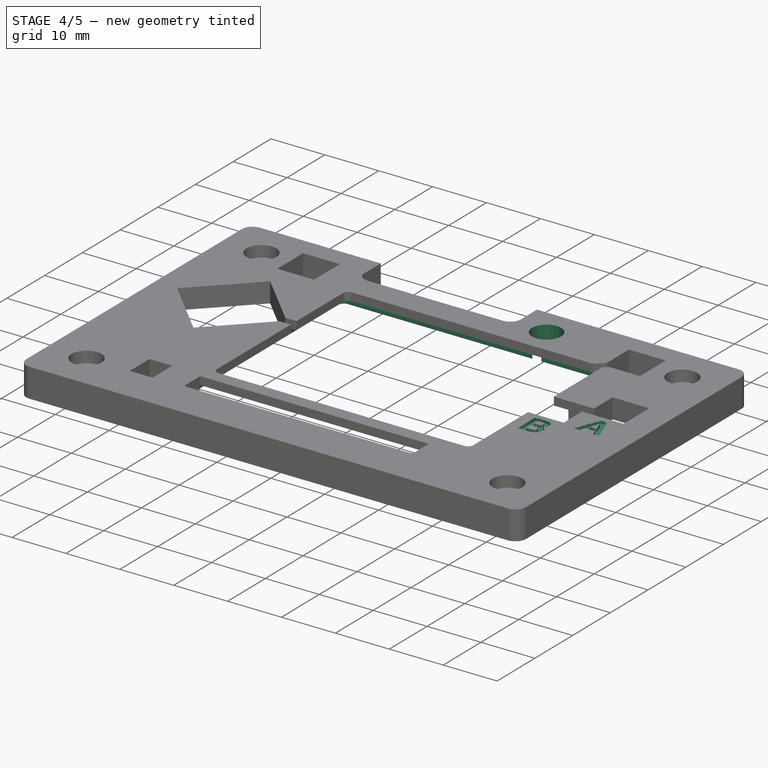
[diagram: stage 4 of 5 — iso view after this stage's code; geometry added in this stage tinted green]
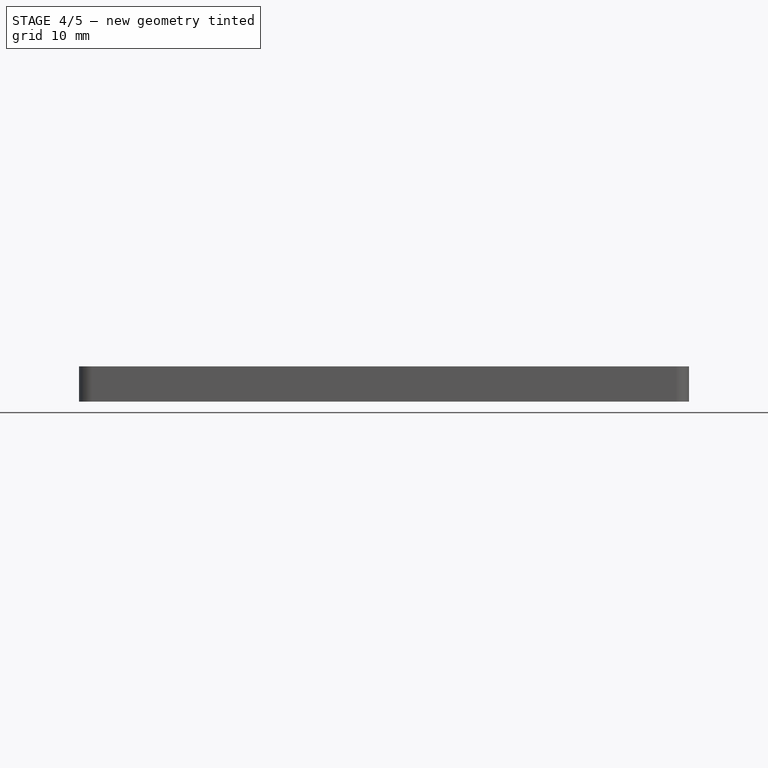
[diagram: stage 4 of 5 — front view after this stage's code; geometry added in this stage tinted green]
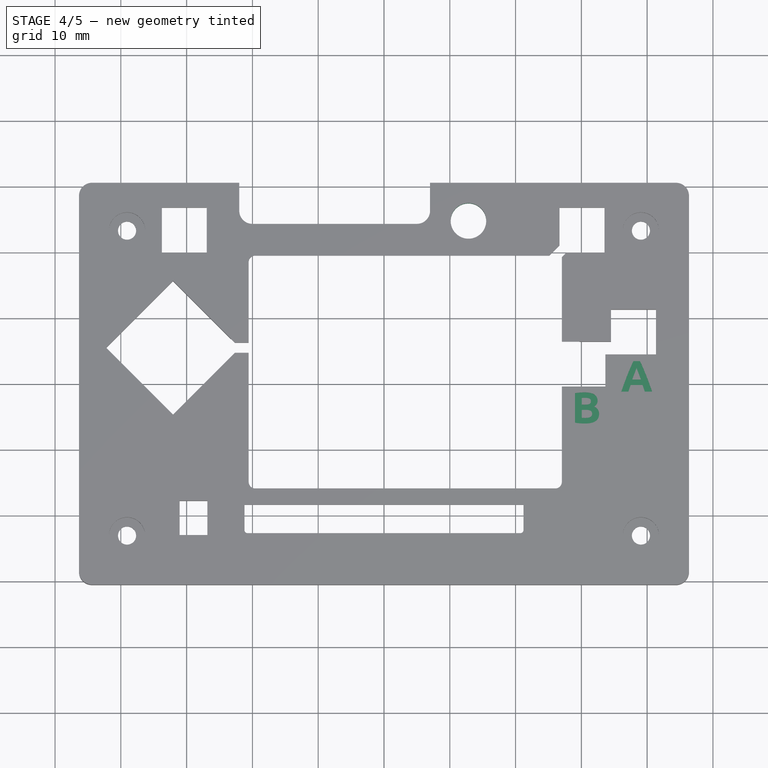
[diagram: stage 4 of 5 — top view after this stage's code; geometry added in this stage tinted green]
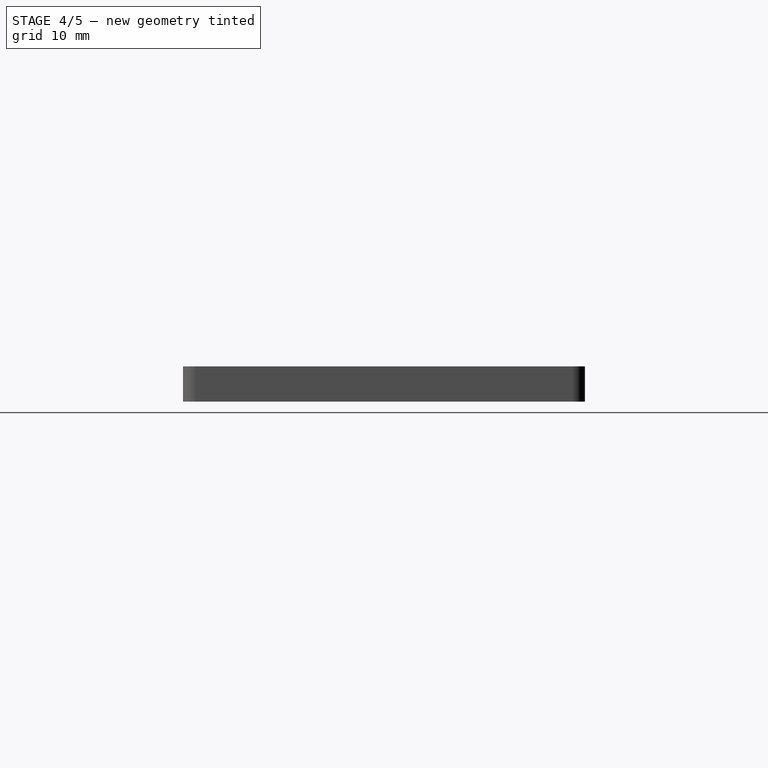
[diagram: stage 4 of 5 — right view after this stage's code; geometry added in this stage tinted green]
FEATURE [Part::Part2DObjectPython] ShapeString  label="BLabelShapeString"  # Draft 2D object (typed FeaturePython)
  FontFile = ./font/Ubuntu-B.ttf
  MakeFace = true
  Placement = pos=(28.5,-6,3.7) rot=(0,0,1;0rad)
  Size = 2.5
  String = B
  Tracking = 0
  expr: .Placement.Base.x = Spreadsheet.BLabelXPos
  expr: .Placement.Base.y = Spreadsheet.BLabelYPos
  expr: .Placement.Base.z = Spreadsheet.PyBadgeCoverTopThickness
FEATURE [PartDesign::Pocket] Pocket010  label="BLabelPocket"
  BaseFeature = -> Pocket009
  Direction = (0,0,-1)
  Length = 0.5
  Length2 = 5
  Profile = -> ShapeString
  ReferenceAxis = -> ShapeString [N_Axis]
  Type = 0
FEATURE [Part::Part2DObjectPython] ShapeString001  label="ALabelShapeString"  # Draft 2D object (typed FeaturePython)
  FontFile = ./font/Ubuntu-B.ttf
  MakeFace = true
  Placement = pos=(36,-1.2,3.7) rot=(0,0,1;0rad)
  Size = 2.5
  String = A
  Tracking = 0
  expr: .Placement.Base.x = Spreadsheet.ALabelXPos
  expr: .Placement.Base.y = Spreadsheet.ALabelYPos
  expr: .Placement.Base.z = Spreadsheet.PyBadgeCoverTopThickness
  expr: Size = Spreadsheet.ALabelSize
FEATURE [PartDesign::Pocket] Pocket011  label="ALabelPocket"
  BaseFeature = -> Pocket010
  Direction = (0,0,-1)
  Length = 0.5
  Length2 = 5
  Profile = -> ShapeString001
  ReferenceAxis = -> ShapeString001 [N_Axis]
  Type = 0
FEATURE [Sketcher::SketchObject] Sketch012  label="LightSensorPocketSketch"
  FullyConstrained = true
  MapMode = 5
  Placement = pos=(0,0,3.7) rot=(0,0,1;0rad)
  Support = -> [DatumPlane]
  expr: Constraints[10] = Spreadsheet.PyBadgePCBLength
  expr: Constraints[12] = Spreadsheet.LightSensorCenterXPos
  expr: Constraints[15] = Spreadsheet.LightSensorCenterYPos
  expr: Constraints[17] = Spreadsheet.LightSensorPocketDiameter
  expr: Constraints[9] = Spreadsheet.PyBadgePCBWidth
  sketch-geometry (7):
    g0: LineSegment StartX=-42.8625 StartY=27.051 StartZ=0 EndX=42.8625 EndY=27.051 EndZ=0
    g1: LineSegment StartX=42.8625 StartY=27.051 StartZ=0 EndX=42.8625 EndY=-27.051 EndZ=0
    g2: LineSegment StartX=42.8625 StartY=-27.051 StartZ=0 EndX=-42.8625 EndY=-27.051 EndZ=0
    g3: LineSegment StartX=-42.8625 StartY=-27.051 StartZ=0 EndX=-42.8625 EndY=27.051 EndZ=0
    g4: GeomPoint X=12.8345 Y=-27.051 Z=0
    g5: LineSegment StartX=12.8345 StartY=24.744 StartZ=0 EndX=12.8345 EndY=-27.051 EndZ=0
    g6: Circle CenterX=12.8345 CenterY=24.744 CenterZ=0 NormalX=0 NormalY=0 NormalZ=1 AngleXU=0 Radius=2.7
  constraints (18):
    c: Coincident(g0,g1)
    c: Coincident(g1,g2)
    c: Coincident(g2,g3)
    c: Coincident(g3,g0)
    c: Horizontal(g0)
    c: Horizontal(g2)
    c: Vertical(g1)
    c: Vertical(g3)
    c: Symmetric(g0,g1,g-1)
    c: DistanceX(g0,g0) = 85.725
    c: DistanceY(g3,g3) = 54.102
    c: PointOnObject(g4,g2)
    c: DistanceX(g2,g4) = 55.697
    c: Vertical(g5)
    c: Coincident(g5,g4)
    c: DistanceY(g5,g5) = 51.795
    c: Coincident(g6,g5)
    c: Diameter(g6) = 5.4
FEATURE [PartDesign::Pocket] Pocket012  label="LightSensorPocket"
  BaseFeature = -> Pocket011
  Direction = (0,0,-1)
  Length = 5
  Length2 = 5
  Profile = -> Sketch012
  ReferenceAxis = -> Sketch012 [N_Axis]
  Type = 1
FEATURE [Sketcher::SketchObject] Sketch013  label="DisplayGlueClearanceSketch"
  FullyConstrained = true
  MapMode = 5
  Support = -> [XY_Plane]
  expr: Constraints[10] = Spreadsheet.PyBadgePCBWidth
  expr: Constraints[11] = Spreadsheet.PyBadgePCBLength
  expr: Constraints[20] = Spreadsheet.PyBadgeDisplayPocketWidth
  expr: Constraints[21] = Spreadsheet.PyBadgeDisplayPocketLength
  expr: Constraints[22] = Spreadsheet.PyBadgeDisplayPockerFromPCBLeftEdge
  expr: Constraints[23] = Spreadsheet.PyBadgeDisplayPockerFromPCBBottomEdge
  expr: Constraints[31] = Spreadsheet.PyBadgeDisplayGlueClearanceMargin
  expr: Constraints[32] = Spreadsheet.PyBadgeDisplayGlueClearanceMargin
  expr: Constraints[37] = Spreadsheet.PyBadgeDisplayPocketFilletRadius
  sketch-geometry (23):
    g0: LineSegment StartX=-42.8625 StartY=27.051 StartZ=0 EndX=-42.8625 EndY=-27.051 EndZ=0
    g1: LineSegment StartX=-42.8625 StartY=-27.051 StartZ=0 EndX=42.8625 EndY=-27.051 EndZ=0
    g2: LineSegment StartX=42.8625 StartY=-27.051 StartZ=0 EndX=42.8625 EndY=27.051 EndZ=0
    g3: LineSegment StartX=42.8625 StartY=27.051 StartZ=0 EndX=-42.8625 EndY=27.051 EndZ=0
    g4: GeomPoint X=0 Y=0 Z=0
    g5: LineSegment StartX=-20.5695 StartY=19.478 StartZ=0 EndX=27.0305 EndY=19.478 EndZ=0
    g6: LineSegment StartX=27.0305 StartY=19.478 StartZ=0 EndX=27.0305 EndY=-15.922 EndZ=0
    g7: LineSegment StartX=27.0305 StartY=-15.922 StartZ=0 EndX=-20.5695 EndY=-15.922 EndZ=0
    g8: LineSegment StartX=-20.5695 StartY=-15.922 StartZ=0 EndX=-20.5695 EndY=19.478 EndZ=0
    g9: GeomPoint X=3.2305 Y=1.778 Z=0
    g10: LineSegment StartX=-23.2695 StartY=21.178 StartZ=0 EndX=-23.2695 EndY=-17.622 EndZ=0
    g11: LineSegment StartX=-22.2695 StartY=-18.622 StartZ=0 EndX=28.7305 EndY=-18.622 EndZ=0
    g12: LineSegment StartX=29.7305 StartY=-17.622 StartZ=0 EndX=29.7305 EndY=21.178 EndZ=0
    g13: LineSegment StartX=28.7305 StartY=22.178 StartZ=0 EndX=-22.2695 EndY=22.178 EndZ=0
    g14: GeomPoint X=3.2305 Y=1.778 Z=0
    g15: ArcOfCircle CenterX=-22.2695 CenterY=21.178 CenterZ=0 NormalX=0 NormalY=0 NormalZ=1 AngleXU=0 Radius=1 StartAngle=1.5708 EndAngle=3.14159
    g16: GeomPoint X=-23.2695 Y=22.178 Z=0
    g17: ArcOfCircle CenterX=-22.2695 CenterY=-17.622 CenterZ=0 NormalX=0 NormalY=0 NormalZ=1 AngleXU=0 Radius=1 StartAngle=3.14159 EndAngle=4.71239
    g18: GeomPoint X=-23.2695 Y=-18.622 Z=0
    g19: ArcOfCircle CenterX=28.7305 CenterY=21.178 CenterZ=0 NormalX=0 NormalY=0 NormalZ=1 AngleXU=0 Radius=1 StartAngle=1.7e-15 EndAngle=1.5708
    g20: GeomPoint X=29.7305 Y=22.178 Z=0
    g21: ArcOfCircle CenterX=28.7305 CenterY=-17.622 CenterZ=0 NormalX=0 NormalY=0 NormalZ=1 AngleXU=0 Radius=1 StartAngle=4.71239 EndAngle=6.28319
    g22: GeomPoint X=29.7305 Y=-18.622 Z=0
  constraints (53):
    c: Coincident(g0,g1)
    c: Coincident(g1,g2)
    c: Coincident(g2,g3)
    c: Coincident(g3,g0)
    c: Horizontal(g1)
    c: Horizontal(g3)
    c: Vertical(g0)
    c: Vertical(g2)
    c: Symmetric(g1,g0,g4)
    c: Coincident(g4,g-1)
    c: DistanceX(g3,g3) = 85.725
    c: DistanceY(g2,g2) = 54.102
    c: Coincident(g5,g6)
    c: Coincident(g6,g7)
    c: Coincident(g7,g8)
    c: Coincident(g8,g5)
    c: Horizontal(g5)
    c: Horizontal(g7)
    c: Vertical(g6)
    c: Vertical(g8)
    c: DistanceX(g5,g5) = 47.6
    c: DistanceY(g6,g6) = 35.4
    c: DistanceX(g0,g7) = 22.293
    c: DistanceY(g0,g7) = 11.129
    c: Symmetric(g5,g6,g9)
    c: Horizontal(g11)
    c: Horizontal(g13)
    c: Vertical(g10)
    c: Vertical(g12)
    c: Symmetric(g22,g16,g14)
    c: Coincident(g14,g9)
    c: DistanceX(g18,g7) = 2.7
    c: DistanceY(g5,g16) = 2.7
    c: PointOnObject(g16,g10)
    c: PointOnObject(g16,g13)
    c: Tangent(g10,g15) = -1.5708
    c: Tangent(g13,g15) = -1.5708
    c: Radius(g15) = 1
    c: PointOnObject(g18,g10)
    c: PointOnObject(g18,g11)
    c: Tangent(g10,g17) = -1.5708
    c: Tangent(g11,g17) = -1.5708
    c: Equal(g15,g17)
    c: PointOnObject(g20,g13)
    c: PointOnObject(g20,g12)
    c: Tangent(g13,g19) = -1.5708
    c: Tangent(g12,g19) = -1.5708
    c: Equal(g15,g19)
    c: PointOnObject(g22,g12)
    c: PointOnObject(g22,g11)
    c: Tangent(g12,g21) = -1.5708
    c: Tangent(g11,g21) = -1.5708
    c: Equal(g19,g21)
FEATURE [PartDesign::Pocket] Pocket013  label="DsplayGlueClearancePocket"
  BaseFeature = -> Pocket012
  Direction = (0,0,-1)
  Length = 2.2
  Length2 = 5
  Profile = -> Sketch013
  ReferenceAxis = -> Sketch013 [N_Axis]
  Reversed = true
  Type = 0
  expr: Length = Spreadsheet.PyBadgeDisplayGlueClearancePocketDepth
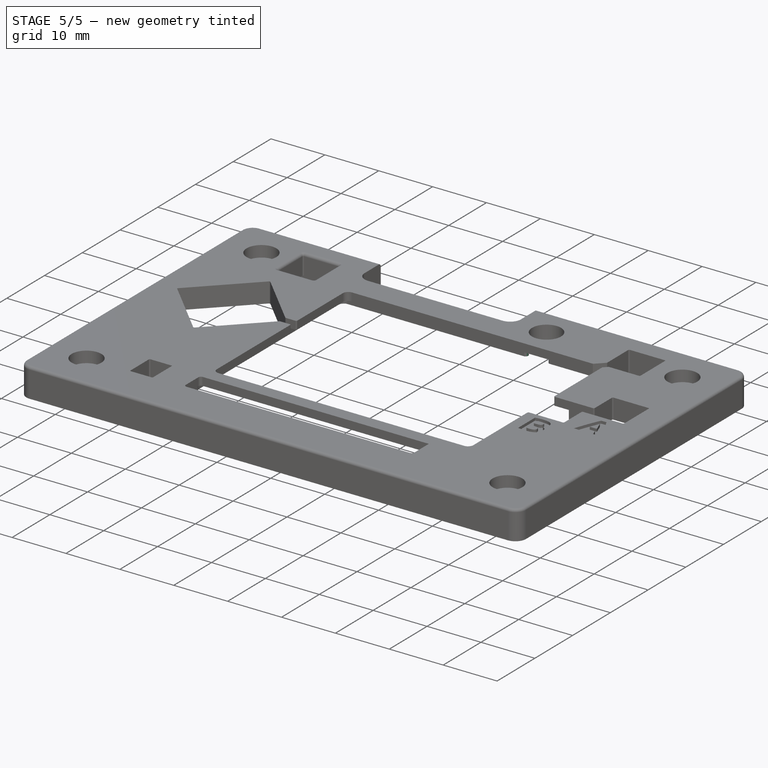
[diagram: stage 5 of 5 — iso view after this stage's code; geometry added in this stage tinted green]
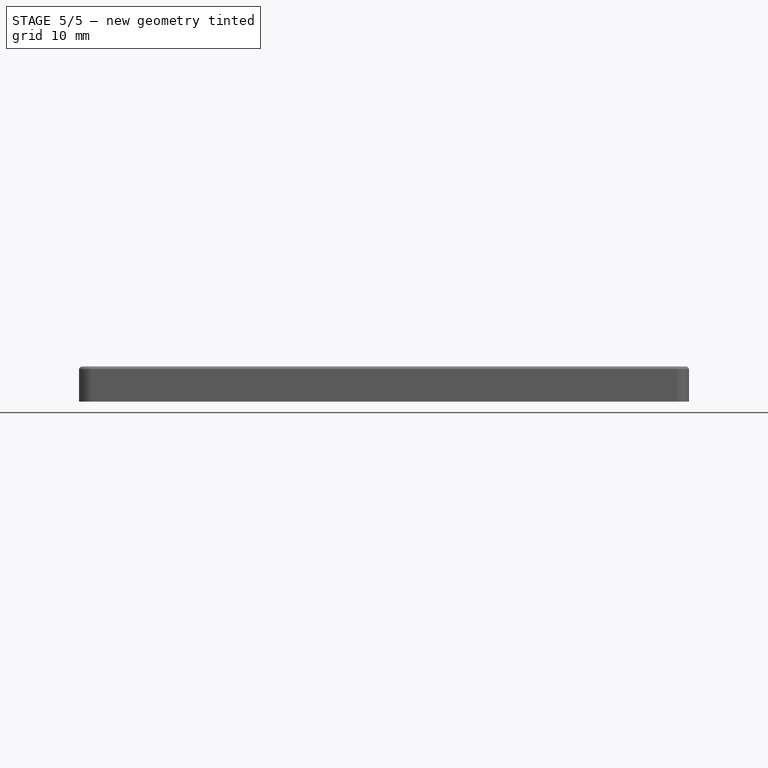
[diagram: stage 5 of 5 — front view after this stage's code; geometry added in this stage tinted green]
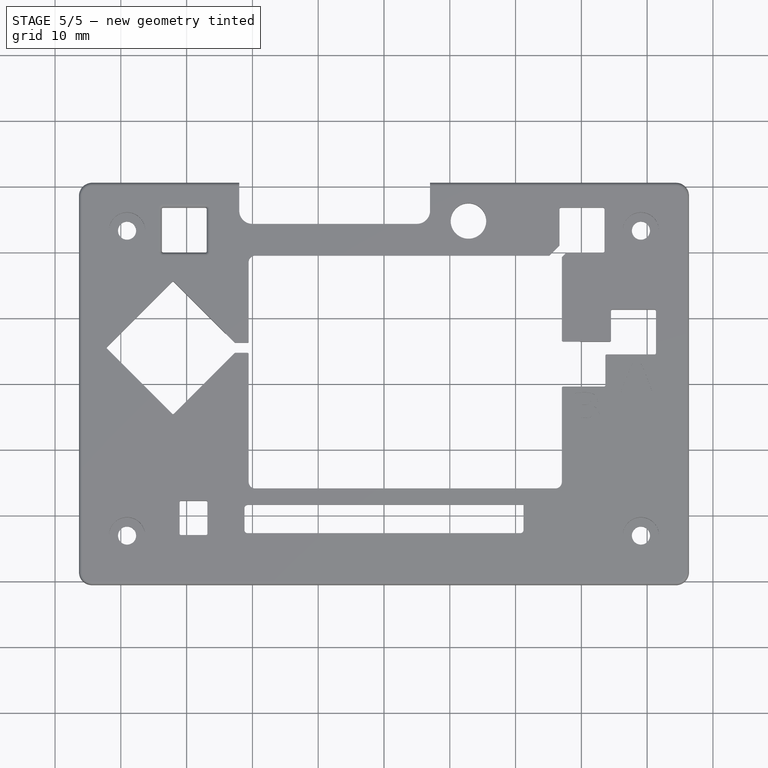
[diagram: stage 5 of 5 — top view after this stage's code; geometry added in this stage tinted green]
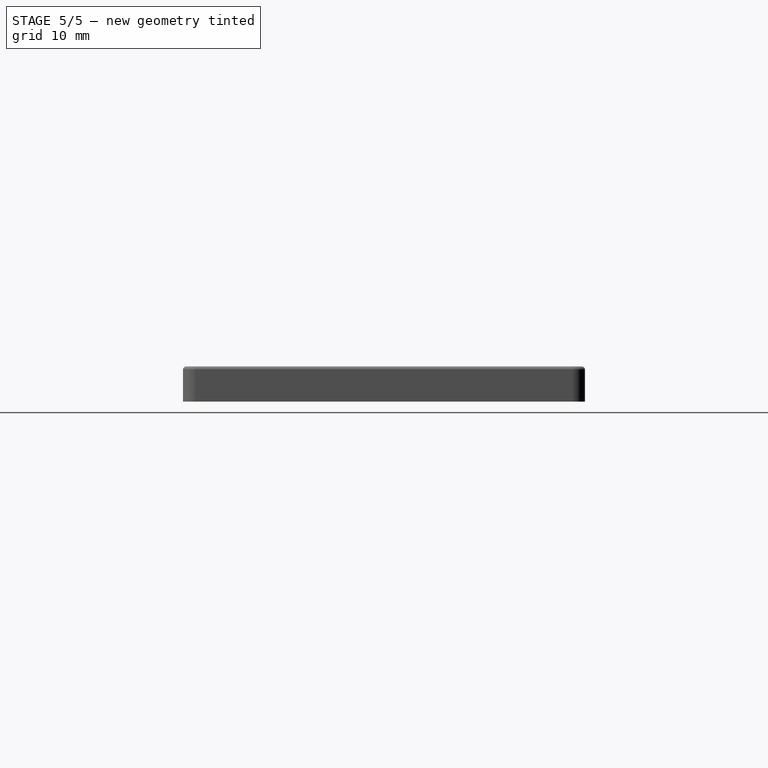
[diagram: stage 5 of 5 — right view after this stage's code; geometry added in this stage tinted green]
FEATURE [PartDesign::Fillet] Fillet002  label="TopEdgeFillet"
  Base = -> Pocket013 [Edge25]
  BaseFeature = -> Pocket013
  Radius = 0.5
  SupportTransform = false
  UseAllEdges = false
  expr: Radius = Spreadsheet.MediumFilletRadius
FEATURE [PartDesign::Fillet] Fillet  label="ButtonInnerEdgeFillet"
  Base = -> Fillet002 [Edge317,Edge320,Edge319,Edge318,Edge278,Edge280,Edge282,Edge286,Edge291,Edge272,Edge268,Edge217,Edge220,Edge219,Edge218,Edge308,Edge311,Edge312,Edge310,Edge313,Edge293,Edge298,Edge297,Edge302,Edge305,Edge275,Edge274,Edge270,Edge265,Edge279,Edge281,Edge285,Edge283,Edge289]
  BaseFeature = -> Fillet002
  Radius = 0.2
  SupportTransform = false
  UseAllEdges = false
  expr: Radius = Spreadsheet.SmallFilletRadius
FEATURE [PartDesign::Fillet] Fillet003  label="ClearanceSlotEdgeFillet"
  Base = -> Fillet [Edge298,Edge327,Edge181,Edge192,Edge263,Edge261]
  BaseFeature = -> Fillet
  Radius = 0.5
  SupportTransform = false
  UseAllEdges = false
  expr: Radius = Spreadsheet.MediumFilletRadius
FEATURE [PartDesign::Fillet] Fillet004  label="LEDPocketEdgeFillet"
  Base = -> Fillet003 [Edge7,Edge244]
  BaseFeature = -> Fillet003
  Radius = 0.5
  SupportTransform = false
  UseAllEdges = false
  expr: Radius = Spreadsheet.LEDPocketFilletRadius
FEATURE [PartDesign::Body] Body
  Group = -> [Sketch,Pad,Sketch001,Pad001,DatumPlane,Sketch002,Pocket,Sketch003,Pocket001,Sketch004,Pocket002,Sketch005,Pocket003,Sketch006,Pocket004,Sketch007,Pocket005,Sketch008,Pocket006,Sketch009,Pocket007,Sketch010,Pocket008,Sketch011,Pocket009,ShapeString,Pocket010,ShapeString001,Pocket011,Sketch012,Pocket012,Sketch013,Pocket013,Fillet002,Fillet,Fillet003,Fillet004]
  Origin = -> Origin
  Tip = -> Fillet004
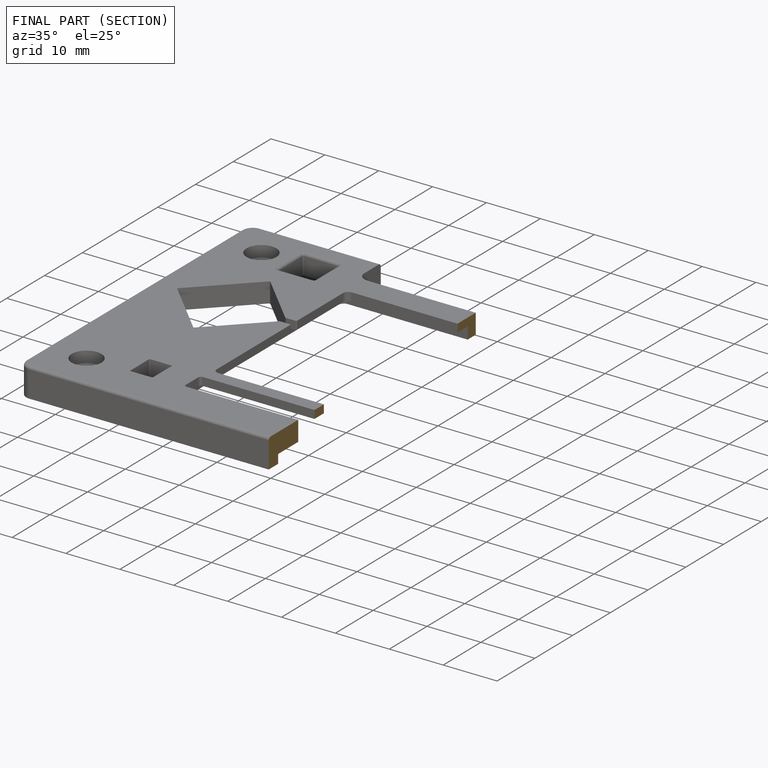
[diagram: finished part — half-section view (interior)]
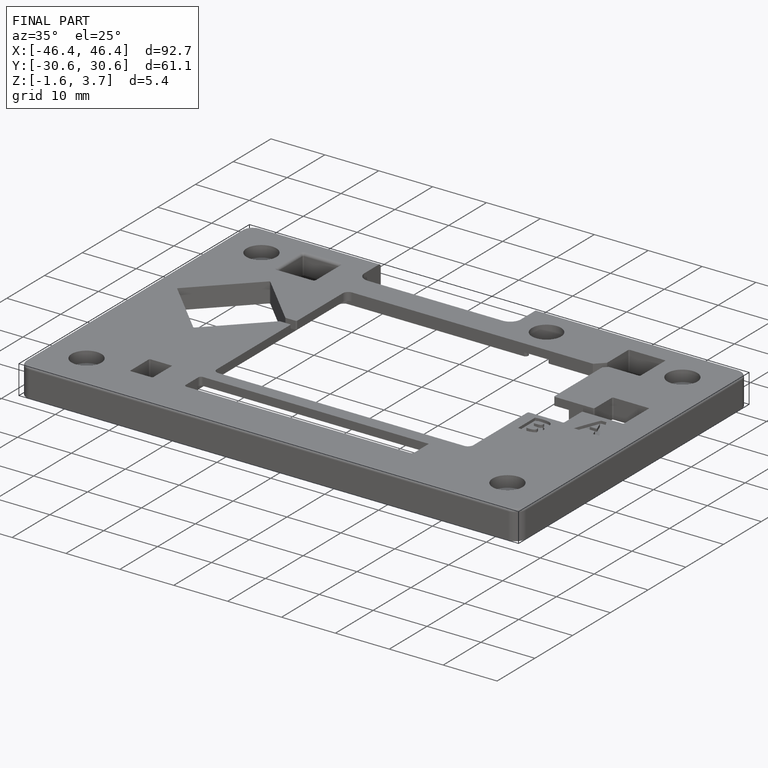
[diagram: finished part — iso view with bounding-box wireframe]
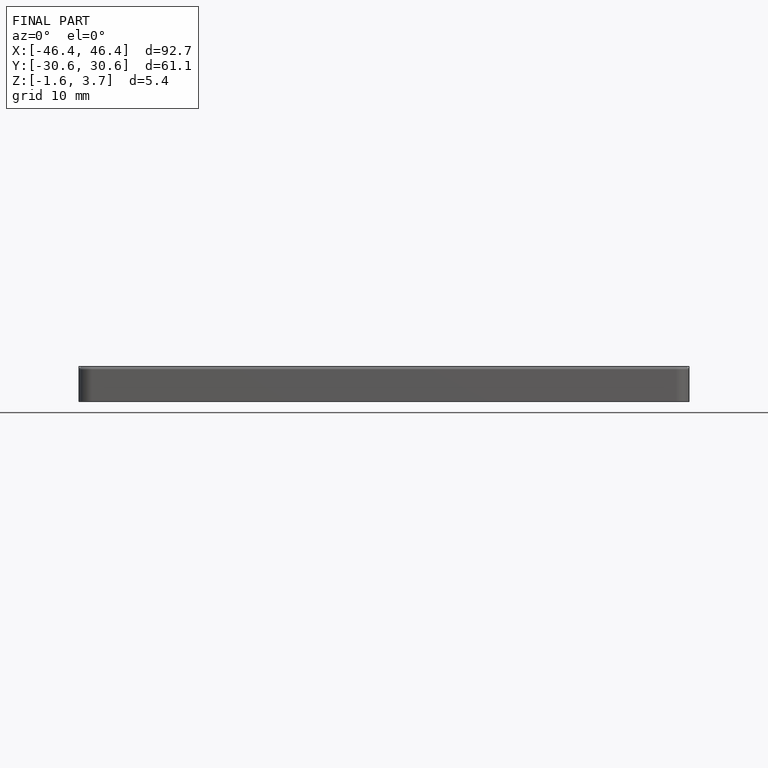
[diagram: finished part — front view with bounding-box wireframe]
